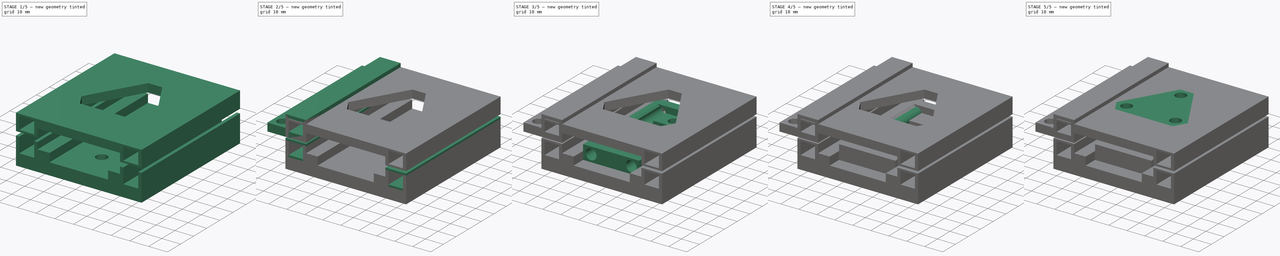
[diagram: build sequence overview — one tinted view per stage of 5, left to right]
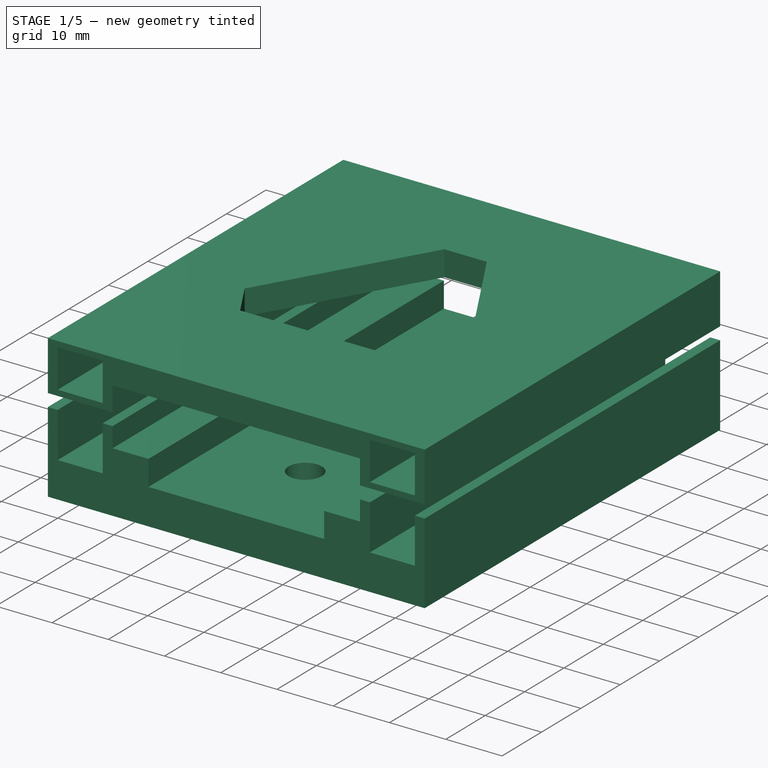
[diagram: stage 1 of 5 — iso view after this stage's code; geometry added in this stage tinted green]
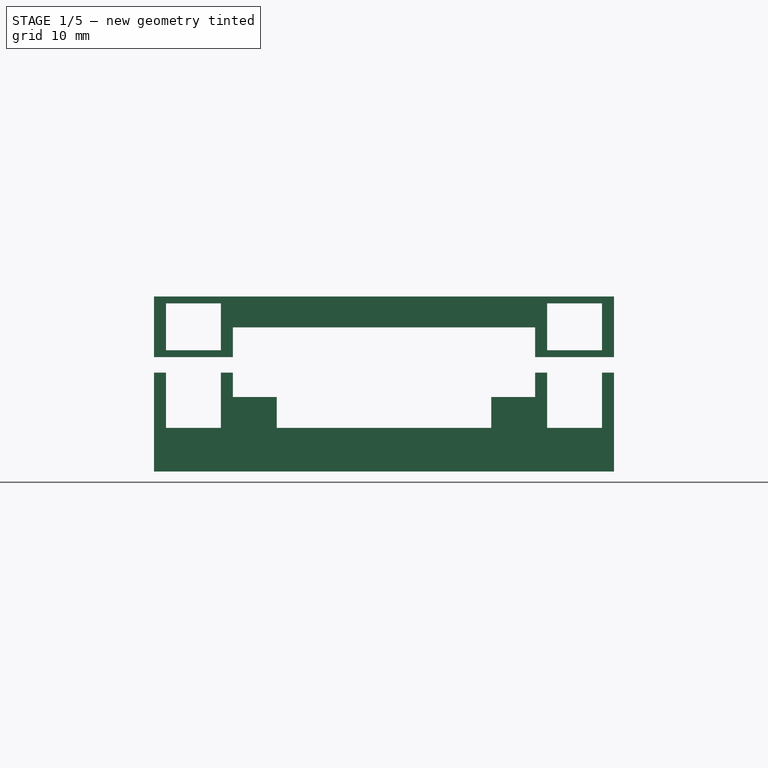
[diagram: stage 1 of 5 — front view after this stage's code; geometry added in this stage tinted green]
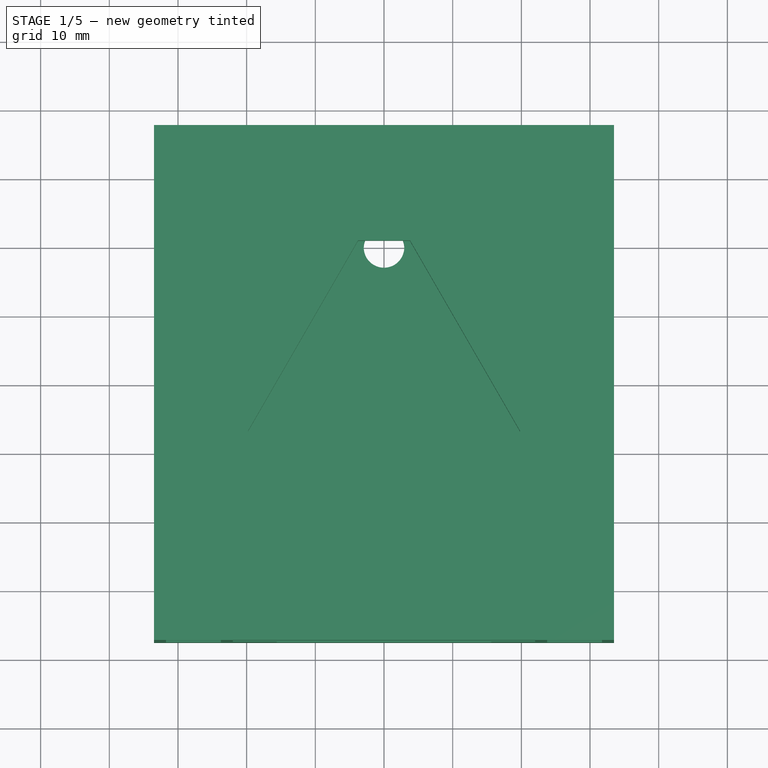
[diagram: stage 1 of 5 — top view after this stage's code; geometry added in this stage tinted green]
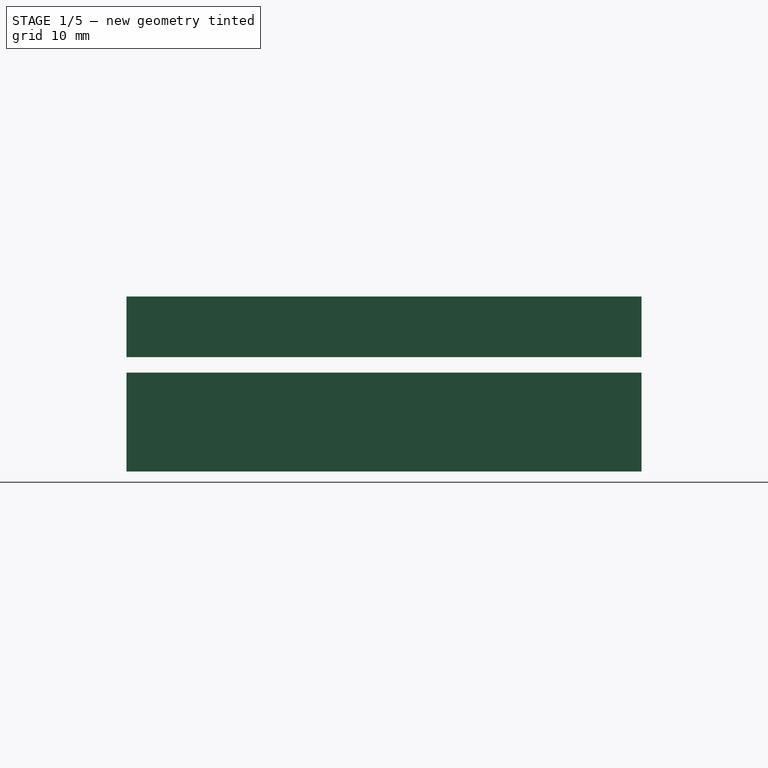
[diagram: stage 1 of 5 — right view after this stage's code; geometry added in this stage tinted green]
FCSTD DOCUMENT  (FreeCAD 2022.1128R26244 +5318 (Git))
Label: kinematicBase-large-25.42mm
License: All rights reserved
LicenseURL: http://en.wikipedia.org/wiki/All_rights_reserved
objects: PartDesign::Pad×35, App::FeaturePython×34, Sketcher::SketchObject×31, Part::FeaturePython×22, PartDesign::Body×9, PartDesign::Revolution×3, Part::SubShapeBinder×2, Part::Feature×1, Spreadsheet::Sheet×1, App::Link×1
note: 205 computed .brp shape members not serialized (recipe doc carries the construction recipe); baked Part::Feature solids carry a one-line shape summary decoded from their .brp
EXTERNAL_REF file=_ref/K_J_Magnetics/BYC33.FCStd obj=Body

FEATURE [PartDesign::Body] Body005  label="kinematicBase-large-augmentationMagnetBracket-standalone"
  AutoGroupSolids = false
  ClaimAllChildren = false
  ExportMode = 0
  Group = -> [Sketch024,Pad022,Pad024,Sketch025,Pad023,Pad025]
  Origin = -> Origin005
  Tip = -> Pad025
  TreeRank = 124
  _ExportChildren = -> [Pad022,Pad024,Pad023,Pad025]
  _GroupVersion = 1
FEATURE [Part::FeaturePython] Parts004  # WARN: FeaturePython — macro-defined, semantics opaque (R4)
  Group = -> [Body005,Link]
  GroupMode = 0
  TreeRank = 114
  _LinkVersion = 1
FEATURE [Sketcher::SketchObject] Sketch027
  ArcFitTolerance = 1e-06
  AttachmentOffset = pos=(0,0,-9.675) rot=(0,0,1;0rad)
  AttachmentSupport = -> [XY_Plane006]
  ExternalBSplineMaxDegree = 5
  ExternalBSplineTolerance = 0.0001
  ExternalGeometry = -> [Sketch005]
  FullyConstrained = true
  InternalTolerance = 1e-06
  MakeInternals = false
  MapMode = 5
  Placement = pos=(0,0,-9.675) rot=(0,0,1;0rad)
  Support = -> [XY_Plane006]
  TreeRank = 145
  expr: AttachmentOffset.Base.z = -1 * Spreadsheet.ballDiameter * 0.5 - Spreadsheet.socketFloorClearance
  expr: Constraints[24] = Spreadsheet.augmentationLength
  expr: Constraints[25] = Spreadsheet.augmentationWall
  expr: Constraints[26] = Spreadsheet.augmentationWidth
  expr: Constraints[2] = Spreadsheet.augmentationOffset
  sketch-geometry (28):
    g0: LineSegment [constr] StartX=0 StartY=0 StartZ=0 EndX=-22 EndY=0 EndZ=0
    g1: LineSegment StartX=-22 StartY=37.5 StartZ=0 EndX=-23.75 EndY=37.5 EndZ=0
    g2: LineSegment StartX=-23.75 StartY=37.5 StartZ=0 EndX=-23.75 EndY=-37.5 EndZ=0
    g3: LineSegment StartX=-23.75 StartY=-37.5 StartZ=0 EndX=-22 EndY=-37.5 EndZ=0
    g4: LineSegment StartX=-22 StartY=-37.5 StartZ=0 EndX=-22 EndY=37.5 EndZ=0
    g5: LineSegment StartX=-23.75 StartY=37.5 StartZ=0 EndX=-31.75 EndY=37.5 EndZ=0
    g6: LineSegment StartX=-31.75 StartY=37.5 StartZ=0 EndX=-31.75 EndY=-37.5 EndZ=0
    g7: LineSegment StartX=-31.75 StartY=-37.5 StartZ=0 EndX=-23.75 EndY=-37.5 EndZ=0
    g8: LineSegment StartX=-31.75 StartY=37.5 StartZ=0 EndX=-33.5 EndY=37.5 EndZ=0
    g9: LineSegment StartX=-33.5 StartY=37.5 StartZ=0 EndX=-33.5 EndY=-37.5 EndZ=0
    g10: LineSegment StartX=-33.5 StartY=-37.5 StartZ=0 EndX=-31.75 EndY=-37.5 EndZ=0
    g11: LineSegment StartX=-22 StartY=37.5 StartZ=0 EndX=-15.611 EndY=37.5 EndZ=0
    g12: LineSegment StartX=-15.611 StartY=37.5 StartZ=0 EndX=-15.611 EndY=-37.5 EndZ=0
    g13: LineSegment StartX=-15.611 StartY=-37.5 StartZ=0 EndX=-22 EndY=-37.5 EndZ=0
    g14: LineSegment [constr] StartX=0 StartY=0 StartZ=0 EndX=22 EndY=0 EndZ=0
    g15: LineSegment StartX=22 StartY=37.5 StartZ=0 EndX=23.75 EndY=37.5 EndZ=0
    g16: LineSegment StartX=23.75 StartY=37.5 StartZ=0 EndX=23.75 EndY=-37.5 EndZ=0
    g17: LineSegment StartX=23.75 StartY=-37.5 StartZ=0 EndX=22 EndY=-37.5 EndZ=0
    g18: LineSegment StartX=22 StartY=-37.5 StartZ=0 EndX=22 EndY=37.5 EndZ=0
    g19: LineSegment StartX=22 StartY=37.5 StartZ=0 EndX=15.611 EndY=37.5 EndZ=0
    g20: LineSegment StartX=15.611 StartY=37.5 StartZ=0 EndX=15.611 EndY=-37.5 EndZ=0
    g21: LineSegment StartX=15.611 StartY=-37.5 StartZ=0 EndX=22 EndY=-37.5 EndZ=0
    g22: LineSegment StartX=23.75 StartY=37.5 StartZ=0 EndX=31.75 EndY=37.5 EndZ=0
    g23: LineSegment StartX=31.75 StartY=37.5 StartZ=0 EndX=31.75 EndY=-37.5 EndZ=0
    g24: LineSegment StartX=31.75 StartY=-37.5 StartZ=0 EndX=23.75 EndY=-37.5 EndZ=0
    g25: LineSegment StartX=31.75 StartY=-37.5 StartZ=0 EndX=33.5 EndY=-37.5 EndZ=0
    g26: LineSegment StartX=33.5 StartY=-37.5 StartZ=0 EndX=33.5 EndY=37.5 EndZ=0
    g27: LineSegment StartX=33.5 StartY=37.5 StartZ=0 EndX=31.75 EndY=37.5 EndZ=0
  constraints (76):
    c: Coincident(g0,g-1)
    c: Horizontal(g0)
    c: DistanceX(g0,g0) = 22
    c: Coincident(g1,g2)
    c: Coincident(g2,g3)
    c: Coincident(g3,g4)
    c: Coincident(g4,g1)
    c: Horizontal(g1)
    c: Horizontal(g3)
    c: Vertical(g2)
    c: Vertical(g4)
    c: Coincident(g5,g1)
    c: Horizontal(g5)
    c: Coincident(g6,g5)
    c: Vertical(g6)
    c: Coincident(g7,g6)
    c: Coincident(g7,g2)
    c: Horizontal(g8)
    c: Coincident(g9,g8)
    c: Vertical(g9)
    c: Coincident(g10,g9)
    c: Horizontal(g10)
    c: Horizontal(g7)
    c: Symmetric(g4,g4,g0)
    c: DistanceY(g4,g4) = 75
    c: DistanceX(g3,g3) = 1.75
    c: DistanceX(g7,g7) = 8
    c: Coincident(g8,g5)
    c: Coincident(g6,g10)
    c: Equal(g10,g3)
    c: Coincident(g11,g1)
    c: Horizontal(g11)
    c: Coincident(g12,g11)
    c: Vertical(g12)
    c: Coincident(g13,g12)
    c: Coincident(g13,g3)
    c: Horizontal(g13)
    c: PointOnObject(g-3,g12)
    c: Coincident(g14,g0)
    c: Horizontal(g14)
    c: Coincident(g15,g16)
    c: Coincident(g16,g17)
    c: Coincident(g17,g18)
    c: Coincident(g18,g15)
    c: Horizontal(g15)
    c: Horizontal(g17)
    c: Vertical(g16)
    c: Vertical(g18)
    c: Equal(g17,g3)
    c: Symmetric(g18,g18,g14)
    c: Coincident(g19,g15)
    c: Horizontal(g19)
    c: Coincident(g20,g19)
    c: Vertical(g20)
    c: Coincident(g21,g20)
    c: Coincident(g21,g17)
    c: Horizontal(g21)
    c: PointOnObject(g-4,g20)
    c: Coincident(g22,g15)
    c: Horizontal(g22)
    c: Coincident(g23,g22)
    c: Vertical(g23)
    c: Coincident(g24,g23)
    c: Coincident(g24,g16)
    c: Horizontal(g24)
    c: Coincident(g25,g23)
    c: Horizontal(g25)
    c: Coincident(g26,g25)
    c: Vertical(g26)
    c: Coincident(g27,g26)
    c: Coincident(g27,g22)
    c: Horizontal(g27)
    c: Equal(g25,g17)
    c: Equal(g13,g21)
    c: Equal(g7,g24)
    c: Equal(g20,g12)
FEATURE [PartDesign::Pad] Pad026
  AddSubType = 0
  AlongSketchNormal = false
  AutoTaperInnerAngle = true
  CheckUpToFaceLimits = true
  ClaimChildren = false
  Direction = (0,0,1)
  Fit = 0
  FitJoin = 0
  InnerFit = 0
  InnerFitJoin = 0
  Length = 4.5
  Length2 = 100
  Linearize = true
  NewSolid = false
  Profile = -> Sketch027 [Edge7,Edge8,Edge6,Edge19,Edge21,Edge20,Edge18,Edge5]
  Refine = true
  Suppress = false
  TaperInnerAngle = 0
  TaperInnerAngleRev = 0
  TreeRank = 146
  Type = 0
  _ProfileBasedVersion = 1
  expr: Length = Spreadsheet.socketAugmentationFloor
FEATURE [PartDesign::Pad] Pad027
  AddSubType = 0
  AlongSketchNormal = false
  AutoTaperInnerAngle = true
  BaseFeature = -> Pad026
  CheckUpToFaceLimits = true
  ClaimChildren = false
  Direction = (0,0,1)
  Fit = 0
  FitJoin = 0
  InnerFit = 0
  InnerFitJoin = 0
  Length = 8.05
  Length2 = 100
  Linearize = true
  NewSolid = false
  Profile = -> Sketch027 [Edge4,Edge5,Edge2,Edge3,Edge13,Edge10,Edge11,Edge12,Edge17,Edge16,Edge15,Edge18,Edge23,Edge24,Edge25,Edge26]
  Refine = true
  Suppress = false
  TaperInnerAngle = 0
  TaperInnerAngleRev = 0
  TreeRank = 147
  Type = 0
  _ProfileBasedVersion = 1
  expr: Length = Spreadsheet.socketAugmentationHeight
FEATURE [PartDesign::Body] Body006  label="kinematicBase-large-bottom-ADDITIVE-augmentationMagnetBracket"
  AutoGroupSolids = false
  ClaimAllChildren = false
  ExportMode = 0
  Group = -> [Sketch027,Pad026,Pad027,Pad028,Sketch028,Pad029]
  Origin = -> Origin006
  Tip = -> Pad029
  TreeRank = 144
  _ExportChildren = -> [Pad026,Pad027,Pad028,Pad029]
  _GroupVersion = 1
FEATURE [Sketcher::SketchObject] Sketch030
  ArcFitTolerance = 1e-06
  AttachmentSupport = -> [XY_Plane007]
  ExternalBSplineMaxDegree = 5
  ExternalBSplineTolerance = 0.0001
  FullyConstrained = true
  InternalTolerance = 1e-06
  MakeInternals = false
  MapMode = 5
  Support = -> [XY_Plane007]
  TreeRank = 82
  expr: Constraints[1] = Spreadsheet.socketLength * 0.5 - Spreadsheet.socketCap
  expr: Constraints[4] = Spreadsheet.screwHead
  expr: Constraints[6] = Spreadsheet.screwHole
  sketch-geometry (6):
    g0: LineSegment [constr] StartX=0 StartY=25 StartZ=0 EndX=0 EndY=0 EndZ=0
    g1: Circle [constr] CenterX=0 CenterY=20 CenterZ=0 NormalX=0 NormalY=0 NormalZ=1 AngleXU=0 Radius=5
    g2: Circle CenterX=0 CenterY=20 CenterZ=0 NormalX=0 NormalY=0 NormalZ=1 AngleXU=0 Radius=2.95
    g3: Circle [constr] CenterX=0 CenterY=-20 CenterZ=0 NormalX=0 NormalY=0 NormalZ=1 AngleXU=0 Radius=5
    g4: Circle CenterX=0 CenterY=-20 CenterZ=0 NormalX=0 NormalY=0 NormalZ=1 AngleXU=0 Radius=2.95
    g5: LineSegment [constr] StartX=0 StartY=-25 StartZ=0 EndX=0 EndY=0 EndZ=0
  constraints (16):
    c: Vertical(g0)
    c: DistanceY(g0,g0) = 25
    c: PointOnObject(g1,g0)
    c: PointOnObject(g0,g1)
    c: Diameter(g1) = 10
    c: Coincident(g2,g1)
    c: Diameter(g2) = 5.9
    c: Coincident(g0,g-1)
    c: Equal(g3,g1)
    c: Equal(g2,g4)
    c: Vertical(g5)
    c: PointOnObject(g4,g5)
    c: Coincident(g3,g4)
    c: PointOnObject(g5,g3)
    c: Equal(g5,g0)
    c: Coincident(g5,g0)
FEATURE [Part::SubShapeBinder] Import  label="Import(Sketch027)"
  BindCopyOnChange = 0
  BindMode = 0
  ClaimChildren = false
  Context = -> Assembly [Parts.Assembly003.Parts003.Assembly002.Parts002.Body007.Import.]
  EdgeTolerance = 1e-06
  FillStyle = 0
  Fuse = false
  MakeFace = false
  MergeEdges = true
  OffsetFill = false
  OffsetIntersection = false
  OffsetJoinType = 0
  OffsetOpenResult = false
  Outline = false
  PartialLoad = false
  Relative = true
  SplitEdges = false
  Support = -> [Body006[Sketch027.]]
  TightBound = false
  TreeRank = 153
  _Version = 8
FEATURE [Sketcher::SketchObject] Sketch029
  ArcFitTolerance = 1e-06
  AttachmentSupport = -> [XZ_Plane007]
  ExternalBSplineMaxDegree = 5
  ExternalBSplineTolerance = 0.0001
  ExternalGeometry = -> [Import]
  FullyConstrained = true
  InternalTolerance = 1e-06
  MakeInternals = false
  MapMode = 5
  Placement = pos=(0,0,0) rot=(1,0,0;1.5708rad)
  Support = -> [XZ_Plane007]
  TreeRank = 80
  expr: Constraints[14] = Spreadsheet.socketFloorClearance
  expr: Constraints[16] = Spreadsheet.socketDiameter
  expr: Constraints[9] = Spreadsheet.ballDiameter
  sketch-geometry (7):
    g0: LineSegment StartX=-33.5 StartY=-9.675 StartZ=0 EndX=33.5 EndY=-9.675 EndZ=0
    g1: LineSegment StartX=33.5 StartY=-9.675 StartZ=0 EndX=33.5 EndY=-16.025 EndZ=0
    g2: LineSegment StartX=33.5 StartY=-16.025 StartZ=0 EndX=-33.5 EndY=-16.025 EndZ=0
    g3: LineSegment StartX=-33.5 StartY=-16.025 StartZ=0 EndX=-33.5 EndY=-9.675 EndZ=0
    g4: Circle [constr] CenterX=0 CenterY=0 CenterZ=0 NormalX=0 NormalY=0 NormalZ=1 AngleXU=0 Radius=9.525
    g5: LineSegment [constr] StartX=0 StartY=0 StartZ=0 EndX=0 EndY=-9.525 EndZ=0
    g6: LineSegment [constr] StartX=0 StartY=-9.525 StartZ=0 EndX=0 EndY=-9.675 EndZ=0
  constraints (19):
    c: Coincident(g0,g1)
    c: Coincident(g1,g2)
    c: Coincident(g2,g3)
    c: Coincident(g3,g0)
    c: Horizontal(g0)
    c: Horizontal(g2)
    c: Vertical(g1)
    c: Vertical(g3)
    c: Coincident(g4,g-1)
    c: Diameter(g4) = 19.05
    c: Coincident(g5,g4)
    c: PointOnObject(g5,g4)
    c: Coincident(g6,g5)
    c: Parallel(g6,g5)
    c: DistanceY(g6,g6) = 0.15
    c: Vertical(g5)
    c: DistanceY(g1,g1) = 6.35
    c: Symmetric(g0,g0,g6)
    c: PointOnObject(g-3,g3)
FEATURE [PartDesign::Pad] Pad030
  AddSubType = 0
  AlongSketchNormal = false
  AutoTaperInnerAngle = true
  CheckUpToFaceLimits = true
  ClaimChildren = false
  Direction = (0,-1,-2e-16)
  Fit = 0
  FitJoin = 0
  InnerFit = 0
  InnerFitJoin = 0
  Length = 75
  Length2 = 100
  Linearize = true
  Midplane = true
  NewSolid = false
  Profile = -> Sketch029
  Refine = true
  Suppress = false
  TaperInnerAngle = 0
  TaperInnerAngleRev = 0
  TreeRank = 81
  Type = 0
  _ProfileBasedVersion = 1
  expr: Length = Spreadsheet.augmentationLength
FEATURE [PartDesign::Pad] Pad031
  AddSubType = 1
  AlongSketchNormal = false
  AutoTaperInnerAngle = true
  BaseFeature = -> Pad030
  CheckUpToFaceLimits = true
  ClaimChildren = false
  Direction = (0,0,1)
  Fit = 0
  FitJoin = 0
  InnerFit = 0
  InnerFitJoin = 0
  Length = 80
  Length2 = 100
  Linearize = true
  NewSolid = false
  Profile = -> Sketch030
  Refine = true
  Reversed = true
  Suppress = false
  TaperInnerAngle = 0
  TaperInnerAngleRev = 0
  TreeRank = 83
  Type = 0
  _ProfileBasedVersion = 1
FEATURE [PartDesign::Body] Body007  label="kinematicBase-large-bottom-ADDITIVE-shim"
  AutoGroupSolids = false
  ClaimAllChildren = false
  ExportMode = 0
  Group = -> [Sketch029,Pad030,Sketch030,Pad031,Import]
  Origin = -> Origin007
  Tip = -> Pad031
  TreeRank = 151
  _ExportChildren = -> [Pad030,Pad031,Import]
  _GroupVersion = 1
FEATURE [Part::FeaturePython] Parts002  # WARN: FeaturePython — macro-defined, semantics opaque (R4)
  Group = -> [Body002,Body003,Body004,Body006,Body007]
  GroupMode = 0
  TreeRank = 69
  _LinkVersion = 1
FEATURE [Part::SubShapeBinder] Import001  label="Import001(Pad003)"
  BindCopyOnChange = 0
  BindMode = 0
  ClaimChildren = false
  Context = -> Assembly [Parts.Assembly003.Parts003.Assembly001.Parts001.Body008.Import001.]
  EdgeTolerance = 1e-06
  FillStyle = 0
  Fuse = false
  MakeFace = false
  MergeEdges = true
  OffsetFill = false
  OffsetIntersection = false
  OffsetJoinType = 0
  OffsetOpenResult = false
  Outline = false
  PartialLoad = false
  Relative = true
  SplitEdges = false
  Support = -> [Body[Pad003.]]
  TightBound = false
  TreeRank = 165
  _Version = 8
FEATURE [Sketcher::SketchObject] Sketch031
  ArcFitTolerance = 1e-06
  AttachmentOffset = pos=(0,0,9.45) rot=(0,0,1;0rad)
  AttachmentSupport = -> [XY_Plane008]
  ExternalBSplineMaxDegree = 5
  ExternalBSplineTolerance = 0.0001
  ExternalGeometry = -> [Import001]
  FullyConstrained = true
  InternalTolerance = 1e-06
  MakeInternals = false
  MapMode = 5
  Placement = pos=(0,0,9.45) rot=(0,0,1;0rad)
  Support = -> [XY_Plane008]
  TreeRank = 164
  expr: AttachmentOffset.Base.z = Spreadsheet.ballDiameter * 0.5 - Spreadsheet.retainerFloorClearance
  expr: Constraints[25] = Spreadsheet.augmentationWall
  expr: Constraints[26] = Spreadsheet.augmentationOffset
  expr: Constraints[27] = Spreadsheet.augmentationWidth
  expr: Constraints[29] = Spreadsheet.augmentationLength
  sketch-geometry (24):
    g0: LineSegment [constr] StartX=0 StartY=0 StartZ=0 EndX=-22 EndY=0 EndZ=0
    g1: LineSegment StartX=-22 StartY=37.5 StartZ=0 EndX=-23.75 EndY=37.5 EndZ=0
    g2: LineSegment StartX=-23.75 StartY=37.5 StartZ=0 EndX=-23.75 EndY=-37.5 EndZ=0
    g3: LineSegment StartX=-23.75 StartY=-37.5 StartZ=0 EndX=-22 EndY=-37.5 EndZ=0
    g4: LineSegment StartX=-22 StartY=-37.5 StartZ=0 EndX=-22 EndY=37.5 EndZ=0
    g5: LineSegment StartX=-23.75 StartY=-37.5 StartZ=0 EndX=-31.75 EndY=-37.5 EndZ=0
    g6: LineSegment StartX=-31.75 StartY=-37.5 StartZ=0 EndX=-31.75 EndY=37.5 EndZ=0
    g7: LineSegment StartX=-31.75 StartY=37.5 StartZ=0 EndX=-23.75 EndY=37.5 EndZ=0
    g8: LineSegment StartX=-31.75 StartY=37.5 StartZ=0 EndX=-33.5 EndY=37.5 EndZ=0
    g9: LineSegment StartX=-33.5 StartY=37.5 StartZ=0 EndX=-33.5 EndY=-37.5 EndZ=0
    g10: LineSegment StartX=-33.5 StartY=-37.5 StartZ=0 EndX=-31.75 EndY=-37.5 EndZ=0
    g11: LineSegment StartX=22 StartY=37.5 StartZ=0 EndX=23.75 EndY=37.5 EndZ=0
    g12: LineSegment StartX=23.75 StartY=37.5 StartZ=0 EndX=23.75 EndY=-37.5 EndZ=0
    g13: LineSegment StartX=23.75 StartY=-37.5 StartZ=0 EndX=22 EndY=-37.5 EndZ=0
    g14: LineSegment StartX=22 StartY=-37.5 StartZ=0 EndX=22 EndY=37.5 EndZ=0
    g15: LineSegment StartX=23.75 StartY=37.5 StartZ=0 EndX=31.75 EndY=37.5 EndZ=0
    g16: LineSegment StartX=31.75 StartY=37.5 StartZ=0 EndX=31.75 EndY=-37.5 EndZ=0
    g17: LineSegment StartX=31.75 StartY=-37.5 StartZ=0 EndX=23.75 EndY=-37.5 EndZ=0
    g18: LineSegment StartX=31.75 StartY=37.5 StartZ=0 EndX=33.5 EndY=37.5 EndZ=0
    g19: LineSegment StartX=33.5 StartY=37.5 StartZ=0 EndX=33.5 EndY=-37.5 EndZ=0
    g20: LineSegment StartX=33.5 StartY=-37.5 StartZ=0 EndX=31.75 EndY=-37.5 EndZ=0
    g21: LineSegment [constr] StartX=0 StartY=0 StartZ=0 EndX=22 EndY=0 EndZ=0
    g22: LineSegment StartX=-22 StartY=37.5 StartZ=0 EndX=22 EndY=37.5 EndZ=0
    g23: LineSegment StartX=22 StartY=-37.5 StartZ=0 EndX=-22 EndY=-37.5 EndZ=0
  constraints (64):
    c: Coincident(g0,g-1)
    c: Horizontal(g0)
    c: Coincident(g1,g2)
    c: Coincident(g2,g3)
    c: Coincident(g3,g4)
    c: Coincident(g4,g1)
    c: Horizontal(g1)
    c: Horizontal(g3)
    c: Vertical(g2)
    c: Vertical(g4)
    c: Symmetric(g4,g4,g0)
    c: Coincident(g5,g2)
    c: Horizontal(g5)
    c: Coincident(g6,g5)
    c: Vertical(g6)
    c: Coincident(g7,g6)
    c: Coincident(g7,g1)
    c: Horizontal(g7)
    c: Coincident(g8,g6)
    c: Horizontal(g8)
    c: Coincident(g9,g8)
    c: Vertical(g9)
    c: Coincident(g10,g9)
    c: Coincident(g10,g5)
    c: Horizontal(g10)
    c: DistanceX(g3,g3) = 1.75
    c: DistanceX(g0,g0) = 22
    c: DistanceX(g5,g5) = 8
    c: Equal(g10,g3)
    c: DistanceY(g4,g4) = 75
    c: Coincident(g11,g12)
    c: Coincident(g12,g13)
    c: Coincident(g13,g14)
    c: Coincident(g14,g11)
    c: Horizontal(g11)
    c: Horizontal(g13)
    c: Vertical(g12)
    c: Vertical(g14)
    c: Coincident(g15,g11)
    c: Horizontal(g15)
    c: Coincident(g16,g15)
    c: Vertical(g16)
    c: Coincident(g17,g16)
    c: Coincident(g17,g12)
    c: Horizontal(g17)
    c: Coincident(g18,g15)
    c: Horizontal(g18)
    c: Coincident(g19,g18)
    c: Vertical(g19)
    c: Coincident(g20,g19)
    c: Coincident(g20,g16)
    c: Horizontal(g20)
    c: Coincident(g21,g0)
    c: Symmetric(g14,g14,g21)
    c: Horizontal(g21)
    c: Equal(g14,g4)
    c: Equal(g3,g13)
    c: Equal(g13,g20)
    c: Equal(g17,g5)
    c: Equal(g21,g0)
    c: Coincident(g22,g1)
    c: Coincident(g22,g11)
    c: Coincident(g23,g13)
    c: Coincident(g23,g3)
FEATURE [PartDesign::Pad] Pad032
  AddSubType = 0
  AlongSketchNormal = false
  AutoTaperInnerAngle = true
  CheckUpToFaceLimits = true
  ClaimChildren = false
  Direction = (0,0,1)
  Fit = 0
  FitJoin = 0
  InnerFit = 0
  InnerFitJoin = 0
  Length = 4.5
  Length2 = 100
  Linearize = true
  NewSolid = false
  Profile = -> Sketch031 [Edge23,Edge28,Edge27,Edge26,Edge25,Edge24,Edge17,Edge18,Edge22,Edge4]
  Refine = true
  Reversed = true
  Suppress = false
  TaperInnerAngle = 0
  TaperInnerAngleRev = 0
  TreeRank = 166
  Type = 0
  _ProfileBasedVersion = 1
  expr: Length = Spreadsheet.retainerAugmentationFloor
FEATURE [PartDesign::Pad] Pad033
  AddSubType = 0
  AlongSketchNormal = false
  AutoTaperInnerAngle = true
  BaseFeature = -> Pad032
  CheckUpToFaceLimits = true
  ClaimChildren = false
  Direction = (0,0,1)
  Fit = 0
  FitJoin = 0
  InnerFit = 0
  InnerFitJoin = 0
  Length = 7.825
  Length2 = 100
  Linearize = true
  NewSolid = false
  Profile = -> Sketch031 [Edge16,Edge17,Edge14,Edge15,Edge11,Edge12,Edge7,Edge6,Edge21,Edge20,Edge19,Edge22,Edge10,Edge9,Edge8,Edge2]
  Refine = true
  Reversed = true
  Suppress = false
  TaperInnerAngle = 0
  TaperInnerAngleRev = 0
  TreeRank = 167
  Type = 0
  _ProfileBasedVersion = 1
  expr: Length = Spreadsheet.retainerAugmentationHeight
FEATURE [PartDesign::Pad] Pad034
  AddSubType = 0
  AlongSketchNormal = false
  AutoTaperInnerAngle = true
  BaseFeature = -> Pad033
  CheckUpToFaceLimits = true
  ClaimChildren = false
  Direction = (0,0,1)
  Fit = 0
  FitJoin = 0
  InnerFit = 0
  InnerFitJoin = 0
  Length = 1
  Length2 = 100
  Linearize = true
  NewSolid = false
  Profile = -> Sketch031 [Edge5,Edge15,Edge13,Edge12,Edge3,Edge2,Edge1,Edge20]
  Refine = true
  Reversed = true
  Suppress = false
  TaperInnerAngle = 0
  TaperInnerAngleRev = 0
  TreeRank = 168
  Type = 0
  _ProfileBasedVersion = 1
  expr: Length = Spreadsheet.retainerAugmentationFill
FEATURE [Sketcher::SketchObject] Sketch032
  ArcFitTolerance = 1e-06
  AttachmentSupport = -> [Pad034]
  ExternalBSplineMaxDegree = 5
  ExternalBSplineTolerance = 0.0001
  ExternalGeometry = -> [Pad034]
  FullyConstrained = true
  InternalTolerance = 1e-06
  MakeInternals = false
  MapMode = 5
  Placement = pos=(0,0,1.625) rot=(1,0,0;3.14159rad)
  Support = -> [Pad034]
  TreeRank = 169
  sketch-geometry (4):
    g0: LineSegment StartX=-33.5 StartY=37.5 StartZ=0 EndX=-22 EndY=37.5 EndZ=0
    g1: LineSegment StartX=-33.5 StartY=-37.5 StartZ=0 EndX=-22 EndY=-37.5 EndZ=0
    g2: LineSegment StartX=22 StartY=37.5 StartZ=0 EndX=33.5 EndY=37.5 EndZ=0
    g3: LineSegment StartX=22 StartY=-37.5 StartZ=0 EndX=33.5 EndY=-37.5 EndZ=0
  constraints (8):
    c: Coincident(g0,g-4)
    c: Coincident(g0,g-6)
    c: Coincident(g1,g-4)
    c: Coincident(g1,g-6)
    c: Coincident(g2,g-8)
    c: Coincident(g2,g-10)
    c: Coincident(g3,g-8)
    c: Coincident(g3,g-10)
FEATURE [PartDesign::Pad] Pad035
  AddSubType = 0
  AlongSketchNormal = false
  AutoTaperInnerAngle = true
  BaseFeature = -> Pad034
  CheckUpToFaceLimits = true
  ClaimChildren = false
  Direction = (0,0,-1)
  Fit = 0
  FitJoin = 0
  InnerFit = 0
  InnerFitJoin = 0
  Length = 1
  Length2 = 100
  Linearize = true
  NewSolid = false
  Profile = -> Sketch032 [Edge2,Edge1,Edge4,Edge3,Edge10,Edge7,Edge8,Edge11]
  Refine = true
  Suppress = false
  TaperInnerAngle = 0
  TaperInnerAngleRev = 0
  TreeRank = 170
  Type = 0
  _ProfileBasedVersion = 1
  expr: Length = Spreadsheet.retainerAugmentationBarrier
FEATURE [PartDesign::Body] Body008  label="kinematicBase-large-top-ADDITIVE-augmentationMagnetBracket"
  AutoGroupSolids = false
  ClaimAllChildren = false
  ExportMode = 0
  Group = -> [Sketch031,Import001,Pad032,Pad033,Pad034,Sketch032,Pad035]
  Origin = -> Origin008
  Tip = -> Pad035
  TreeRank = 163
  _ExportChildren = -> [Import001,Pad032,Pad033,Pad034,Pad035]
  _GroupVersion = 1
FEATURE [Part::FeaturePython] Parts001  # WARN: FeaturePython — macro-defined, semantics opaque (R4)
  Group = -> [Body001,Body,Body008]
  GroupMode = 0
  TreeRank = 30
  _LinkVersion = 1
FEATURE [Part::FeaturePython] Assembly  label="kinematicBase-large-lab-Assembly"  # WARN: FeaturePython — macro-defined, semantics opaque (R4)
  AutoRelax = true
  BuildShape = 0
  Freeze = false
  Group = -> [Constraints,Elements,Parts]
  TreeRank = 0
  Verbose = false
  _LinkVersion = 1
  _SolverType = 1
  _Version = 1
FEATURE [App::FeaturePython] Constraints  # WARN: FeaturePython — macro-defined, semantics opaque (R4)
  Group = -> [Constraint]
  TreeRank = 0
  _LinkVersion = 1
  _Version = 1
FEATURE [App::FeaturePython] Elements  # WARN: FeaturePython — macro-defined, semantics opaque (R4)
  Group = -> [_Element]
  TreeRank = 0
  _LinkVersion = 1
FEATURE [Part::FeaturePython] Parts  # WARN: FeaturePython — macro-defined, semantics opaque (R4)
  Group = -> [Compound,Assembly003]
  GroupMode = 0
  TreeRank = 0
  _LinkVersion = 1
FEATURE [Part::FeaturePython] _Element  # link proxy (typed FeaturePython)
  Detach = false
  LinkTransform = true
  LinkedObject = -> Compound [Face64]
  TreeRank = 4
  _LinkVersion = 1
  _Parent = -> Elements
FEATURE [App::FeaturePython] Constraint  label="Locked"  # WARN: FeaturePython — macro-defined, semantics opaque (R4)
  Disabled = false
  Group = -> [ElementLink]
  TreeRank = 5
  _ConstraintType = 0
  _LinkVersion = 1
  _Parent = -> Constraints
FEATURE [App::FeaturePython] ElementLink  label="_Element"  # link proxy (typed FeaturePython)
  LinkTransform = true
  LinkedObject = -> _Element
  TreeRank = 6
  _LinkVersion = 1
  _Parent = -> Constraint
FEATURE [Part::FeaturePython] Assembly001  label="kinematicBase-large-top-ball-Assembly"  # WARN: FeaturePython — macro-defined, semantics opaque (R4)
  AutoRelax = true
  BuildShape = 0
  Freeze = false
  Group = -> [Constraints001,Elements001,Parts001]
  TreeRank = 27
  Verbose = false
  _LinkVersion = 1
  _SolverType = 1
  _Version = 1
FEATURE [App::FeaturePython] Constraints001  # WARN: FeaturePython — macro-defined, semantics opaque (R4)
  Group = -> [Constraint001,Constraint002,Constraint011]
  TreeRank = 28
  _LinkVersion = 1
  _Version = 1
FEATURE [App::FeaturePython] Elements001  # WARN: FeaturePython — macro-defined, semantics opaque (R4)
  Group = -> [_Element001,_Element002,_Element011]
  TreeRank = 29
  _LinkVersion = 1
FEATURE [Part::FeaturePython] Assembly002  label="kinematicBase-large-bottom-rods-Assembly"  # WARN: FeaturePython — macro-defined, semantics opaque (R4)
  AutoRelax = true
  BuildShape = 0
  Freeze = false
  Group = -> [Constraints002,Elements002,Parts002]
  TreeRank = 66
  Verbose = false
  _LinkVersion = 1
  _SolverType = 1
  _Version = 1
FEATURE [App::FeaturePython] Constraints002  # WARN: FeaturePython — macro-defined, semantics opaque (R4)
  Group = -> [Constraint003,Constraint004,Constraint005,Constraint009,Constraint010]
  TreeRank = 67
  _LinkVersion = 1
  _Version = 1
FEATURE [App::FeaturePython] Elements002  # WARN: FeaturePython — macro-defined, semantics opaque (R4)
  Group = -> [_Element003,_Element004,_Element005,_Element009,_Element010]
  TreeRank = 68
  _LinkVersion = 1
FEATURE [Part::FeaturePython] Assembly003  label="kinematicBase-large-Assembly"  # WARN: FeaturePython — macro-defined, semantics opaque (R4)
  AutoRelax = true
  BuildShape = 0
  Freeze = false
  Group = -> [Constraints003,Elements003,Parts003]
  TreeRank = 86
  Verbose = false
  _LinkVersion = 1
  _SolverType = 1
  _Version = 1
FEATURE [App::FeaturePython] Constraints003  # WARN: FeaturePython — macro-defined, semantics opaque (R4)
  Group = -> [Constraint006,Constraint007]
  TreeRank = 87
  _LinkVersion = 1
  _Version = 1
FEATURE [App::FeaturePython] Elements003  # WARN: FeaturePython — macro-defined, semantics opaque (R4)
  Group = -> [_Element006,_Element007]
  TreeRank = 88
  _LinkVersion = 1
FEATURE [Part::FeaturePython] Parts003  # WARN: FeaturePython — macro-defined, semantics opaque (R4)
  Group = -> [Assembly001,Assembly002,Assembly004]
  GroupMode = 0
  TreeRank = 89
  _LinkVersion = 1
FEATURE [App::FeaturePython] Constraint001  label="Locked001"  # WARN: FeaturePython — macro-defined, semantics opaque (R4)
  Disabled = false
  Group = -> [ElementLink001]
  TreeRank = 90
  _ConstraintType = 0
  _LinkVersion = 1
  _Parent = -> Constraints001
FEATURE [App::FeaturePython] ElementLink001  label="XY_Plane001@kinematicBase-large-top-ball@"  # link proxy (typed FeaturePython)
  LinkTransform = true
  LinkedObject = -> _Element001
  TreeRank = 91
  _LinkVersion = 1
  _Parent = -> Constraint001
FEATURE [Part::FeaturePython] _Element001  label="XY_Plane001@kinematicBase-large-top-ball@"  # link proxy (typed FeaturePython)
  Detach = false
  LinkTransform = true
  LinkedObject = -> Body001 [Origin001.XY_Plane001.]
  TreeRank = 92
  _LinkVersion = 1
  _Parent = -> Elements001
FEATURE [App::FeaturePython] Constraint002  label="Locked002"  # WARN: FeaturePython — macro-defined, semantics opaque (R4)
  Disabled = false
  Group = -> [ElementLink002]
  TreeRank = 93
  _ConstraintType = 0
  _LinkVersion = 1
  _Parent = -> Constraints001
FEATURE [App::FeaturePython] ElementLink002  label="XY_Plane@kinematicBase-large-top-retainer@"  # link proxy (typed FeaturePython)
  LinkTransform = true
  LinkedObject = -> _Element002
  TreeRank = 94
  _LinkVersion = 1
  _Parent = -> Constraint002
FEATURE [Part::FeaturePython] _Element002  label="XY_Plane@kinematicBase-large-top-retainer@"  # link proxy (typed FeaturePython)
  Detach = false
  LinkTransform = true
  LinkedObject = -> Body [Origin.XY_Plane.]
  TreeRank = 95
  _LinkVersion = 1
  _Parent = -> Elements001
FEATURE [App::FeaturePython] Constraint003  label="Locked003"  # WARN: FeaturePython — macro-defined, semantics opaque (R4)
  Disabled = false
  Group = -> [ElementLink003]
  TreeRank = 96
  _ConstraintType = 0
  _LinkVersion = 1
  _Parent = -> Constraints002
FEATURE [App::FeaturePython] ElementLink003  label="XY_Plane002@kinematicBase-large-bottom-retainer@"  # link proxy (typed FeaturePython)
  LinkTransform = true
  LinkedObject = -> _Element003
  TreeRank = 97
  _LinkVersion = 1
  _Parent = -> Constraint003
FEATURE [Part::FeaturePython] _Element003  label="XY_Plane002@kinematicBase-large-bottom-retainer@"  # link proxy (typed FeaturePython)
  Detach = false
  LinkTransform = true
  LinkedObject = -> Body002 [Origin002.XY_Plane002.]
  TreeRank = 98
  _LinkVersion = 1
  _Parent = -> Elements002
FEATURE [App::FeaturePython] Constraint004  label="Locked004"  # WARN: FeaturePython — macro-defined, semantics opaque (R4)
  Disabled = false
  Group = -> [ElementLink004]
  TreeRank = 99
  _ConstraintType = 0
  _LinkVersion = 1
  _Parent = -> Constraints002
FEATURE [App::FeaturePython] ElementLink004  label="XY_Plane003@kinematicBase-large-bottom-rods@"  # link proxy (typed FeaturePython)
  LinkTransform = true
  LinkedObject = -> _Element004
  TreeRank = 100
  _LinkVersion = 1
  _Parent = -> Constraint004
FEATURE [Part::FeaturePython] _Element004  label="XY_Plane003@kinematicBase-large-bottom-rods@"  # link proxy (typed FeaturePython)
  Detach = false
  LinkTransform = true
  LinkedObject = -> Body003 [Origin003.XY_Plane003.]
  TreeRank = 101
  _LinkVersion = 1
  _Parent = -> Elements002
FEATURE [App::FeaturePython] Constraint005  label="Locked005"  # WARN: FeaturePython — macro-defined, semantics opaque (R4)
  Disabled = false
  Group = -> [ElementLink005]
  TreeRank = 102
  _ConstraintType = 0
  _LinkVersion = 1
  _Parent = -> Constraints002
FEATURE [App::FeaturePython] ElementLink005  label="XY_Plane004@kinematicBase-large-bottom-plate@"  # link proxy (typed FeaturePython)
  LinkTransform = true
  LinkedObject = -> _Element005
  TreeRank = 103
  _LinkVersion = 1
  _Parent = -> Constraint005
FEATURE [Part::FeaturePython] _Element005  label="XY_Plane004@kinematicBase-large-bottom-plate@"  # link proxy (typed FeaturePython)
  Detach = false
  LinkTransform = true
  LinkedObject = -> Body004 [Origin004.XY_Plane004.]
  TreeRank = 104
  _LinkVersion = 1
  _Parent = -> Elements002
FEATURE [App::FeaturePython] Constraint006  label="Locked006"  # WARN: FeaturePython — macro-defined, semantics opaque (R4)
  Disabled = false
  Group = -> [ElementLink006]
  TreeRank = 105
  _ConstraintType = 0
  _LinkVersion = 1
  _Parent = -> Constraints003
FEATURE [App::FeaturePython] ElementLink006  label="XY_Plane@kinematicBase-large-top-Assembly@"  # link proxy (typed FeaturePython)
  LinkTransform = true
  LinkedObject = -> _Element006
  TreeRank = 106
  _LinkVersion = 1
  _Parent = -> Constraint006
FEATURE [Part::FeaturePython] _Element006  label="XY_Plane@kinematicBase-large-top-Assembly@"  # link proxy (typed FeaturePython)
  Detach = false
  LinkTransform = true
  LinkedObject = -> Assembly001 [1.$XY_Plane@kinematicBase-large-top-retainer@.]
  TreeRank = 107
  _LinkVersion = 1
  _Parent = -> Elements003
FEATURE [App::FeaturePython] Constraint007  label="Locked007"  # WARN: FeaturePython — macro-defined, semantics opaque (R4)
  Disabled = false
  Group = -> [ElementLink007]
  TreeRank = 108
  _ConstraintType = 0
  _LinkVersion = 1
  _Parent = -> Constraints003
FEATURE [App::FeaturePython] ElementLink007  label="XY_Plane002@kinematicBase-large-bottom-rods-Assembly@"  # link proxy (typed FeaturePython)
  LinkTransform = true
  LinkedObject = -> _Element007
  TreeRank = 109
  _LinkVersion = 1
  _Parent = -> Constraint007
FEATURE [Part::FeaturePython] _Element007  label="XY_Plane002@kinematicBase-large-bottom-rods-Assembly@"  # link proxy (typed FeaturePython)
  Detach = false
  LinkTransform = true
  LinkedObject = -> Assembly002 [1.$XY_Plane002@kinematicBase-large-bottom-retainer@.]
  TreeRank = 110
  _LinkVersion = 1
  _Parent = -> Elements003
FEATURE [Part::FeaturePython] Assembly004  label="kinematicBase-large-augmentationMagnetBracket--standalone-Assembly"  # WARN: FeaturePython — macro-defined, semantics opaque (R4)
  AutoRelax = true
  BuildShape = 0
  Freeze = false
  Group = -> [Constraints004,Elements004,Parts004]
  TreeRank = 111
  Verbose = false
  _LinkVersion = 1
  _SolverType = 1
  _Version = 1
FEATURE [App::FeaturePython] Constraints004  # WARN: FeaturePython — macro-defined, semantics opaque (R4)
  Group = -> [Constraint008]
  TreeRank = 112
  _LinkVersion = 1
  _Version = 1
FEATURE [App::FeaturePython] Elements004  # WARN: FeaturePython — macro-defined, semantics opaque (R4)
  Group = -> [_Element008]
  TreeRank = 113
  _LinkVersion = 1
FEATURE [App::FeaturePython] Constraint008  label="Locked008"  # WARN: FeaturePython — macro-defined, semantics opaque (R4)
  Disabled = false
  Group = -> [ElementLink008]
  TreeRank = 127
  _ConstraintType = 0
  _LinkVersion = 1
  _Parent = -> Constraints004
FEATURE [App::FeaturePython] ElementLink008  label="XY_Plane005@kinematicBase-large-augmentationMagnetBracket@"  # link proxy (typed FeaturePython)
  LinkTransform = true
  LinkedObject = -> _Element008
  TreeRank = 128
  _LinkVersion = 1
  _Parent = -> Constraint008
FEATURE [Part::FeaturePython] _Element008  label="XY_Plane005@kinematicBase-large-augmentationMagnetBracket@"  # link proxy (typed FeaturePython)
  Detach = false
  LinkTransform = true
  LinkedObject = -> Body005 [Origin005.XY_Plane005.]
  TreeRank = 129
  _LinkVersion = 1
  _Parent = -> Elements004
FEATURE [App::FeaturePython] Constraint009  label="Locked009"  # WARN: FeaturePython — macro-defined, semantics opaque (R4)
  Disabled = false
  Group = -> [ElementLink009]
  TreeRank = 171
  _ConstraintType = 0
  _LinkVersion = 1
  _Parent = -> Constraints002
FEATURE [App::FeaturePython] ElementLink009  label="XY_Plane006@kinematicBase-large-bottom-ADDITIVE-augmentationMagnetBracket@"  # link proxy (typed FeaturePython)
  LinkTransform = true
  LinkedObject = -> _Element009
  TreeRank = 172
  _LinkVersion = 1
  _Parent = -> Constraint009
FEATURE [Part::FeaturePython] _Element009  label="XY_Plane006@kinematicBase-large-bottom-ADDITIVE-augmentationMagnetBracket@"  # link proxy (typed FeaturePython)
  Detach = false
  LinkTransform = true
  LinkedObject = -> Body006 [Origin006.XY_Plane006.]
  TreeRank = 173
  _LinkVersion = 1
  _Parent = -> Elements002
FEATURE [App::FeaturePython] Constraint010  label="Locked010"  # WARN: FeaturePython — macro-defined, semantics opaque (R4)
  Disabled = false
  Group = -> [ElementLink010]
  TreeRank = 174
  _ConstraintType = 0
  _LinkVersion = 1
  _Parent = -> Constraints002
FEATURE [App::FeaturePython] ElementLink010  label="XY_Plane007@kinematicBase-large-bottom-ADDITIVE-shim@"  # link proxy (typed FeaturePython)
  LinkTransform = true
  LinkedObject = -> _Element010
  TreeRank = 175
  _LinkVersion = 1
  _Parent = -> Constraint010
FEATURE [Part::FeaturePython] _Element010  label="XY_Plane007@kinematicBase-large-bottom-ADDITIVE-shim@"  # link proxy (typed FeaturePython)
  Detach = false
  LinkTransform = true
  LinkedObject = -> Body007 [Origin007.XY_Plane007.]
  TreeRank = 176
  _LinkVersion = 1
  _Parent = -> Elements002
FEATURE [App::FeaturePython] Constraint011  label="Locked011"  # WARN: FeaturePython — macro-defined, semantics opaque (R4)
  Disabled = false
  Group = -> [ElementLink011]
  TreeRank = 177
  _ConstraintType = 0
  _LinkVersion = 1
  _Parent = -> Constraints001
FEATURE [App::FeaturePython] ElementLink011  label="XY_Plane008@kinematicBase-large-top-ADDITIVE-augmentationMagnetBracket@"  # link proxy (typed FeaturePython)
  LinkTransform = true
  LinkedObject = -> _Element011
  TreeRank = 178
  _LinkVersion = 1
  _Parent = -> Constraint011
FEATURE [Part::FeaturePython] _Element011  label="XY_Plane008@kinematicBase-large-top-ADDITIVE-augmentationMagnetBracket@"  # link proxy (typed FeaturePython)
  Detach = false
  LinkTransform = true
  LinkedObject = -> Body008 [Origin008.XY_Plane008.]
  TreeRank = 179
  _LinkVersion = 1
  _Parent = -> Elements001
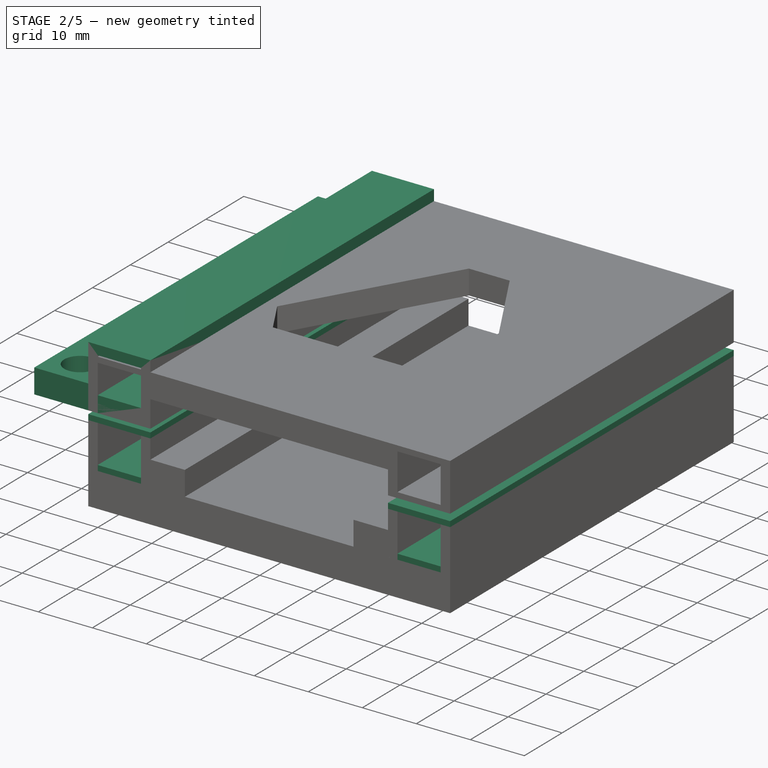
[diagram: stage 2 of 5 — iso view after this stage's code; geometry added in this stage tinted green]
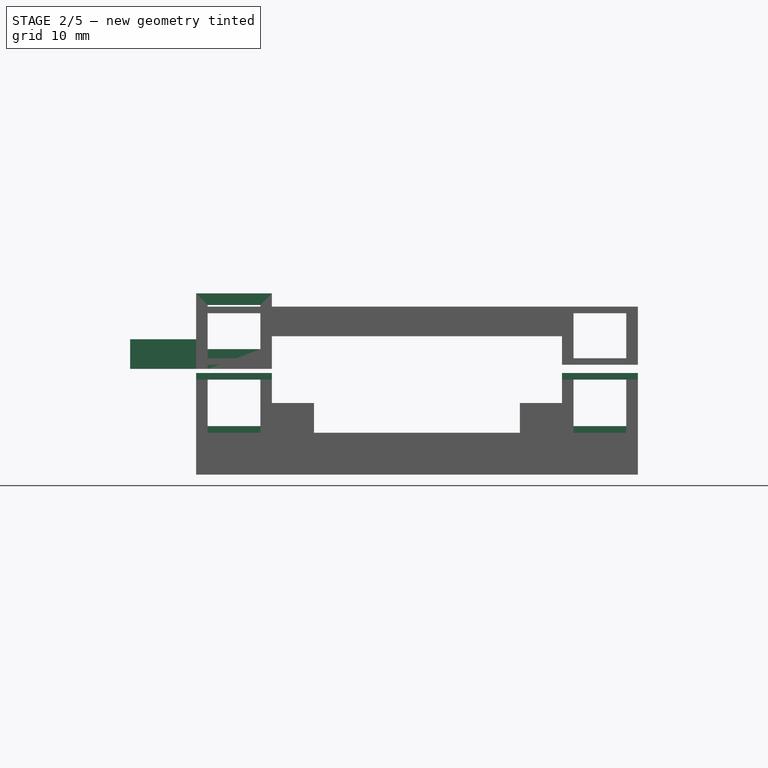
[diagram: stage 2 of 5 — front view after this stage's code; geometry added in this stage tinted green]
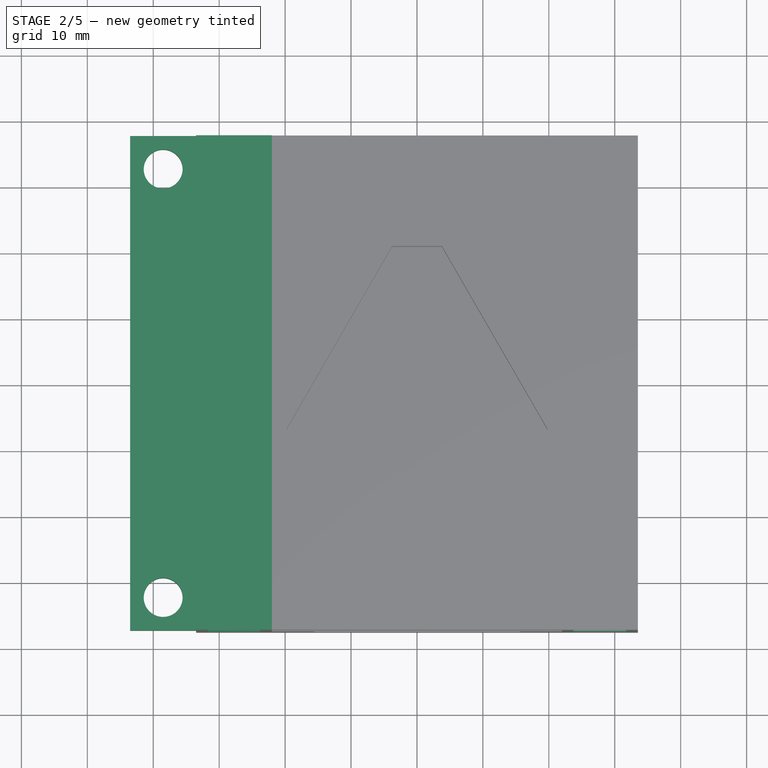
[diagram: stage 2 of 5 — top view after this stage's code; geometry added in this stage tinted green]
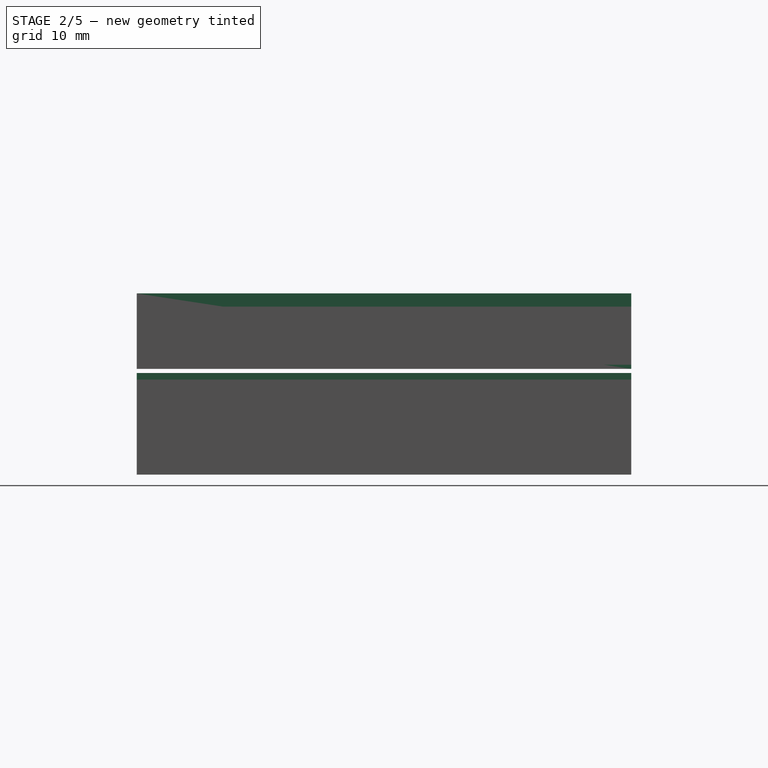
[diagram: stage 2 of 5 — right view after this stage's code; geometry added in this stage tinted green]
FEATURE [PartDesign::Body] Body003  label="kinematicBase-large-bottom-rods"
  AutoGroupSolids = false
  ClaimAllChildren = false
  ExportMode = 0
  Group = -> [Sketch014,Pad011,Sketch015,Sketch016,Sketch017,Pad012,Pad015,Sketch019,Pad013,Pad016,Sketch020,Pad014,Sketch018,Pad017,Pad018]
  Origin = -> Origin003
  Tip = -> Pad018
  TreeRank = 64
  _ExportChildren = -> [Pad011,Pad012,Pad015,Pad013,Pad016,Pad014,Pad017,Pad018]
  _GroupVersion = 1
FEATURE [Sketcher::SketchObject] Sketch021
  ArcFitTolerance = 1e-06
  AttachmentSupport = -> [XZ_Plane004]
  ExternalBSplineMaxDegree = 5
  ExternalBSplineTolerance = 0.0001
  FullyConstrained = true
  InternalTolerance = 1e-06
  MakeInternals = false
  MapMode = 5
  Placement = pos=(0,0,0) rot=(1,0,0;1.5708rad)
  Support = -> [XZ_Plane004]
  TreeRank = 80
  expr: Constraints[14] = Spreadsheet.socketFloorClearance
  expr: Constraints[16] = Spreadsheet.socketDiameter
  expr: Constraints[17] = Spreadsheet.plateWidth
  expr: Constraints[9] = Spreadsheet.ballDiameter
  sketch-geometry (7):
    g0: LineSegment StartX=-15.875 StartY=-9.675 StartZ=0 EndX=15.875 EndY=-9.675 EndZ=0
    g1: LineSegment StartX=15.875 StartY=-9.675 StartZ=0 EndX=15.875 EndY=-16.025 EndZ=0
    g2: LineSegment StartX=15.875 StartY=-16.025 StartZ=0 EndX=-15.875 EndY=-16.025 EndZ=0
    g3: LineSegment StartX=-15.875 StartY=-16.025 StartZ=0 EndX=-15.875 EndY=-9.675 EndZ=0
    g4: Circle [constr] CenterX=0 CenterY=0 CenterZ=0 NormalX=0 NormalY=0 NormalZ=1 AngleXU=0 Radius=9.525
    g5: LineSegment [constr] StartX=0 StartY=0 StartZ=0 EndX=0 EndY=-9.525 EndZ=0
    g6: LineSegment [constr] StartX=0 StartY=-9.525 StartZ=0 EndX=0 EndY=-9.675 EndZ=0
  constraints (19):
    c: Coincident(g0,g1)
    c: Coincident(g1,g2)
    c: Coincident(g2,g3)
    c: Coincident(g3,g0)
    c: Horizontal(g0)
    c: Horizontal(g2)
    c: Vertical(g1)
    c: Vertical(g3)
    c: Coincident(g4,g-1)
    c: Diameter(g4) = 19.05
    c: Coincident(g5,g4)
    c: PointOnObject(g5,g4)
    c: Coincident(g6,g5)
    c: Parallel(g6,g5)
    c: DistanceY(g6,g6) = 0.15
    c: Vertical(g5)
    c: DistanceY(g1,g1) = 6.35
    c: DistanceX(g2,g2) = 31.75
    c: Symmetric(g0,g0,g6)
FEATURE [PartDesign::Pad] Pad019
  AddSubType = 0
  AlongSketchNormal = false
  AutoTaperInnerAngle = true
  CheckUpToFaceLimits = true
  ClaimChildren = false
  Direction = (0,-1,2e-16)
  Fit = 0
  FitJoin = 0
  InnerFit = 0
  InnerFitJoin = 0
  Length = 60
  Length2 = 100
  Linearize = true
  Midplane = true
  NewSolid = false
  Profile = -> Sketch021
  Refine = true
  Suppress = false
  TaperInnerAngle = 0
  TaperInnerAngleRev = 0
  TreeRank = 81
  Type = 0
  _ProfileBasedVersion = 1
  expr: Length = Spreadsheet.socketLength
FEATURE [PartDesign::Body] Body002  label="kinematicBase-large-bottom-retainer"
  AutoGroupSolids = false
  ClaimAllChildren = false
  ExportMode = 0
  Group = -> [Sketch005,Pad004,Sketch007,Sketch008,Sketch009,Pad005,Pad008,Sketch012,Pad006,Pad021,Sketch023,Pad009,Sketch013,Pad007,Sketch010,Pad010]
  Origin = -> Origin002
  Tip = -> Pad010
  TreeRank = 41
  _ExportChildren = -> [Pad004,Pad005,Pad008,Pad006,Pad021,Pad009,Pad007,Pad010]
  _GroupVersion = 1
FEATURE [Sketcher::SketchObject] Sketch024
  ArcFitTolerance = 1e-06
  AttachmentSupport = -> [XY_Plane005]
  ExternalBSplineMaxDegree = 5
  ExternalBSplineTolerance = 0.0001
  FullyConstrained = true
  InternalTolerance = 1e-06
  MakeInternals = false
  MapMode = 5
  Support = -> [XY_Plane005]
  TreeRank = 125
  expr: Constraints[41] = Spreadsheet.screwHole
  expr: Constraints[42] = Spreadsheet.screwHead * 0.5
  expr: Constraints[50] = Spreadsheet.screwHead
  expr: Constraints[51] = Spreadsheet.screwHead * 0.5
  expr: Constraints[54] = Spreadsheet.augmentationWidth
  expr: Constraints[55] = Spreadsheet.augmentationLength
  expr: Constraints[59] = Spreadsheet.augmentationOffset
  expr: Constraints[8] = Spreadsheet.augmentationWall
  sketch-geometry (22):
    g0: LineSegment StartX=-23.75 StartY=37.5 StartZ=0 EndX=-22 EndY=37.5 EndZ=0
    g1: LineSegment StartX=-22 StartY=37.5 StartZ=0 EndX=-22 EndY=-37.5 EndZ=0
    g2: LineSegment StartX=-22 StartY=-37.5 StartZ=0 EndX=-23.75 EndY=-37.5 EndZ=0
    g3: LineSegment StartX=-23.75 StartY=-37.5 StartZ=0 EndX=-23.75 EndY=37.5 EndZ=0
    g4: LineSegment StartX=-23.75 StartY=-37.5 StartZ=0 EndX=-31.75 EndY=-37.5 EndZ=0
    g5: LineSegment StartX=-31.75 StartY=-37.5 StartZ=0 EndX=-33.5 EndY=-37.5 EndZ=0
    g6: LineSegment StartX=-33.5 StartY=-37.5 StartZ=0 EndX=-33.5 EndY=37.5 EndZ=0
    g7: LineSegment StartX=-33.5 StartY=37.5 StartZ=0 EndX=-31.75 EndY=37.5 EndZ=0
    g8: LineSegment StartX=-31.75 StartY=37.5 StartZ=0 EndX=-31.75 EndY=-37.5 EndZ=0
    g9: Circle CenterX=-38.5 CenterY=32.5 CenterZ=0 NormalX=0 NormalY=0 NormalZ=1 AngleXU=0 Radius=2.95
    g10: LineSegment [constr] StartX=-38.5 StartY=32.5 StartZ=0 EndX=-38.5 EndY=35.45 EndZ=0
    g11: LineSegment [constr] StartX=-38.5 StartY=35.45 StartZ=0 EndX=-38.5 EndY=37.5 EndZ=0
    g12: LineSegment [constr] StartX=-38.5 StartY=37.5 StartZ=0 EndX=-33.5 EndY=37.5 EndZ=0
    g13: LineSegment [constr] StartX=-33.5 StartY=-37.5 StartZ=0 EndX=-38.5 EndY=-37.5 EndZ=0
    g14: LineSegment [constr] StartX=-38.5 StartY=-37.5 StartZ=0 EndX=-38.5 EndY=-35.45 EndZ=0
    g15: LineSegment [constr] StartX=-38.5 StartY=-35.45 StartZ=0 EndX=-38.5 EndY=-32.5 EndZ=0
    g16: Circle CenterX=-38.5 CenterY=-32.5 CenterZ=0 NormalX=0 NormalY=0 NormalZ=1 AngleXU=0 Radius=2.95
    g17: LineSegment StartX=-33.5 StartY=37.5 StartZ=0 EndX=-43.5 EndY=37.5 EndZ=0
    g18: LineSegment StartX=-43.5 StartY=37.5 StartZ=0 EndX=-43.5 EndY=-37.5 EndZ=0
    g19: LineSegment StartX=-43.5 StartY=-37.5 StartZ=0 EndX=-33.5 EndY=-37.5 EndZ=0
    g20: LineSegment StartX=-31.75 StartY=37.5 StartZ=0 EndX=-23.75 EndY=37.5 EndZ=0
    g21: LineSegment [constr] StartX=0 StartY=0 StartZ=0 EndX=-22 EndY=0 EndZ=0
  constraints (60):
    c: Coincident(g0,g1)
    c: Coincident(g1,g2)
    c: Coincident(g2,g3)
    c: Coincident(g3,g0)
    c: Horizontal(g0)
    c: Horizontal(g2)
    c: Vertical(g1)
    c: Vertical(g3)
    c: DistanceX(g2,g2) = 1.75
    c: Coincident(g4,g2)
    c: Horizontal(g4)
    c: Coincident(g5,g6)
    c: Coincident(g6,g7)
    c: Coincident(g7,g8)
    c: Coincident(g8,g5)
    c: Horizontal(g5)
    c: Horizontal(g7)
    c: Vertical(g6)
    c: Vertical(g8)
    c: Coincident(g5,g4)
    c: Equal(g5,g2)
    c: Equal(g6,g1)
    c: Coincident(g10,g9)
    c: PointOnObject(g10,g9)
    c: Vertical(g10)
    c: Coincident(g11,g10)
    c: Coincident(g12,g11)
    c: Coincident(g12,g7)
    c: Horizontal(g12)
    c: Vertical(g11)
    c: Coincident(g13,g5)
    c: Horizontal(g13)
    c: Coincident(g14,g13)
    c: Vertical(g14)
    c: Coincident(g15,g14)
    c: Vertical(g15)
    c: Coincident(g16,g15)
    c: PointOnObject(g14,g16)
    c: Equal(g16,g9)
    c: Equal(g14,g11)
    c: Equal(g12,g13)
    c: Diameter(g16) = 5.9
    c: DistanceY(g13,g15) = 5
    c: Coincident(g17,g7)
    c: Horizontal(g17)
    c: Coincident(g18,g17)
    c: Vertical(g18)
    c: Coincident(g19,g18)
    c: Coincident(g19,g5)
    c: Horizontal(g19)
    c: DistanceX(g19,g19) = 10
    c: DistanceX(g14,g5) = 5
    c: Coincident(g20,g7)
    c: Coincident(g20,g0)
    c: DistanceX(g4,g4) = 8
    c: DistanceY(g1,g1) = 75
    c: Coincident(g21,g-1)
    c: Horizontal(g21)
    c: Symmetric(g1,g1,g21)
    c: DistanceX(g21,g21) = 22
FEATURE [PartDesign::Pad] Pad022
  AddSubType = 0
  AlongSketchNormal = false
  AutoTaperInnerAngle = true
  CheckUpToFaceLimits = true
  ClaimChildren = false
  Direction = (0,0,1)
  Fit = 0
  FitJoin = 0
  InnerFit = 0
  InnerFitJoin = 0
  Length = 9.7
  Length2 = 100
  Linearize = true
  NewSolid = false
  Profile = -> Sketch024 [Edge6,Edge7,Edge8,Edge9,Edge10,Edge4,Edge3,Edge2]
  Refine = true
  Suppress = false
  TaperInnerAngle = 0
  TaperInnerAngleRev = 0
  TreeRank = 126
  Type = 0
  _ProfileBasedVersion = 1
  expr: Length = Spreadsheet.augmentationHeight
FEATURE [Sketcher::SketchObject] Sketch025
  ArcFitTolerance = 1e-06
  AttachmentSupport = -> [Pad022]
  ExternalBSplineMaxDegree = 5
  ExternalBSplineTolerance = 0.0001
  ExternalGeometry = -> [Pad022]
  FullyConstrained = true
  InternalTolerance = 1e-06
  MakeInternals = false
  MapMode = 5
  Placement = pos=(0,0,9.7) rot=(0,0,1;0rad)
  Support = -> [Pad022]
  TreeRank = 131
  sketch-geometry (2):
    g0: LineSegment StartX=-33.5 StartY=-37.5 StartZ=0 EndX=-22 EndY=-37.5 EndZ=0
    g1: LineSegment StartX=-22 StartY=37.5 StartZ=0 EndX=-33.5 EndY=37.5 EndZ=0
  constraints (4):
    c: Coincident(g0,g-3)
    c: Coincident(g0,g-4)
    c: Coincident(g1,g-4)
    c: Coincident(g1,g-3)
FEATURE [PartDesign::Pad] Pad024
  AddSubType = 0
  AlongSketchNormal = false
  AutoTaperInnerAngle = true
  BaseFeature = -> Pad022
  CheckUpToFaceLimits = true
  ClaimChildren = false
  Direction = (0,0,1)
  Fit = 0
  FitJoin = 0
  InnerFit = 0
  InnerFitJoin = 0
  Length = 1.75
  Length2 = 100
  Linearize = true
  NewSolid = false
  Profile = -> Sketch025
  Refine = true
  Suppress = false
  TaperInnerAngle = 0
  TaperInnerAngleRev = 0
  TreeRank = 132
  Type = 0
  _ProfileBasedVersion = 1
  expr: Length = Spreadsheet.augmentationWall
FEATURE [PartDesign::Pad] Pad023
  AddSubType = 0
  AlongSketchNormal = false
  AutoTaperInnerAngle = true
  BaseFeature = -> Pad024
  CheckUpToFaceLimits = true
  ClaimChildren = false
  Direction = (0,0,1)
  Fit = 0
  FitJoin = 0
  InnerFit = 0
  InnerFitJoin = 0
  Length = 4.5
  Length2 = 100
  Linearize = true
  NewSolid = false
  Profile = -> Sketch024 [Edge3,Edge13,Edge12,Edge11,Edge15,Edge14]
  Refine = true
  Suppress = false
  TaperInnerAngle = 0
  TaperInnerAngleRev = 0
  TreeRank = 130
  Type = 0
  _ProfileBasedVersion = 1
FEATURE [PartDesign::Pad] Pad025
  AddSubType = 0
  AlongSketchNormal = false
  AutoTaperInnerAngle = true
  BaseFeature = -> Pad023
  CheckUpToFaceLimits = true
  ClaimChildren = false
  Direction = (0,0,1)
  Fit = 0
  FitJoin = 0
  InnerFit = 0
  InnerFitJoin = 0
  Length = 3
  Length2 = 100
  Linearize = true
  NewSolid = false
  Profile = -> Sketch024 [Edge1,Edge9,Edge5,Edge10]
  Refine = true
  Suppress = false
  TaperInnerAngle = 0
  TaperInnerAngleRev = 0
  TreeRank = 133
  Type = 0
  _ProfileBasedVersion = 1
  expr: Length = Spreadsheet.augmentationFill
FEATURE [PartDesign::Pad] Pad028
  AddSubType = 0
  AlongSketchNormal = false
  AutoTaperInnerAngle = true
  BaseFeature = -> Pad027
  CheckUpToFaceLimits = true
  ClaimChildren = false
  Direction = (0,0,1)
  Fit = 0
  FitJoin = 0
  InnerFit = 0
  InnerFitJoin = 0
  Length = 1
  Length2 = 100
  Linearize = true
  NewSolid = false
  Profile = -> Sketch027 [Edge10,Edge9,Edge3,Edge1,Edge22,Edge26,Edge14,Edge16]
  Refine = true
  Suppress = false
  TaperInnerAngle = 0
  TaperInnerAngleRev = 0
  TreeRank = 148
  Type = 0
  _ProfileBasedVersion = 1
  expr: Length = Spreadsheet.socketAugmentationFill
FEATURE [Sketcher::SketchObject] Sketch028
  ArcFitTolerance = 1e-06
  AttachmentSupport = -> [Pad028]
  ExternalBSplineMaxDegree = 5
  ExternalBSplineTolerance = 0.0001
  ExternalGeometry = -> [Pad028]
  FullyConstrained = true
  InternalTolerance = 1e-06
  MakeInternals = false
  MapMode = 5
  Placement = pos=(0,0,-1.625) rot=(0,0,1;0rad)
  Support = -> [Pad028]
  TreeRank = 149
  sketch-geometry (4):
    g0: LineSegment StartX=-33.5 StartY=-37.5 StartZ=0 EndX=-22 EndY=-37.5 EndZ=0
    g1: LineSegment StartX=-33.5 StartY=37.5 StartZ=0 EndX=-22 EndY=37.5 EndZ=0
    g2: LineSegment StartX=22 StartY=-37.5 StartZ=0 EndX=33.5 EndY=-37.5 EndZ=0
    g3: LineSegment StartX=22 StartY=37.5 StartZ=0 EndX=33.5 EndY=37.5 EndZ=0
  constraints (8):
    c: Coincident(g0,g-3)
    c: Coincident(g0,g-4)
    c: Coincident(g1,g-3)
    c: Coincident(g1,g-4)
    c: Coincident(g2,g-5)
    c: Coincident(g2,g-6)
    c: Coincident(g3,g-5)
    c: Coincident(g3,g-6)
FEATURE [PartDesign::Pad] Pad029
  AddSubType = 0
  AlongSketchNormal = false
  AutoTaperInnerAngle = true
  BaseFeature = -> Pad028
  CheckUpToFaceLimits = true
  ClaimChildren = false
  Direction = (0,0,1)
  Fit = 0
  FitJoin = 0
  InnerFit = 0
  InnerFitJoin = 0
  Length = 1
  Length2 = 100
  Linearize = true
  NewSolid = false
  Profile = -> Sketch028
  Refine = true
  Suppress = false
  TaperInnerAngle = 0
  TaperInnerAngleRev = 0
  TreeRank = 150
  Type = 0
  _ProfileBasedVersion = 1
  expr: Length = Spreadsheet.socketAugmentationBarrier
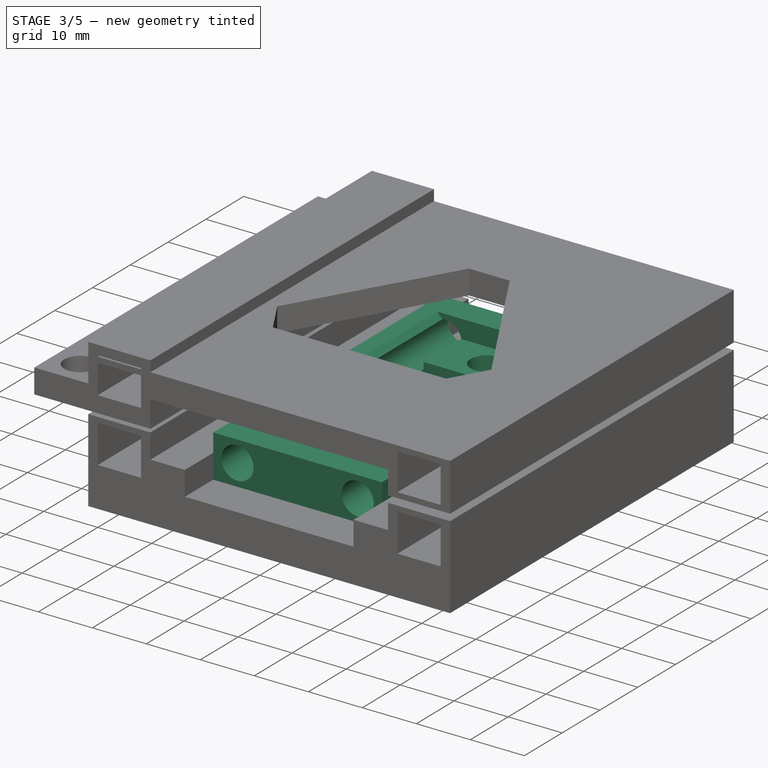
[diagram: stage 3 of 5 — iso view after this stage's code; geometry added in this stage tinted green]
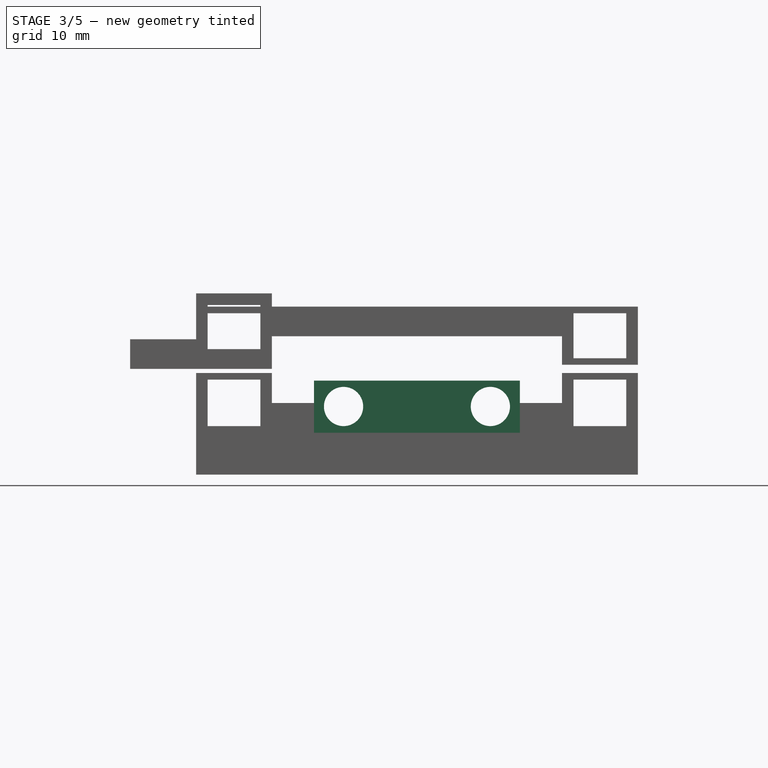
[diagram: stage 3 of 5 — front view after this stage's code; geometry added in this stage tinted green]
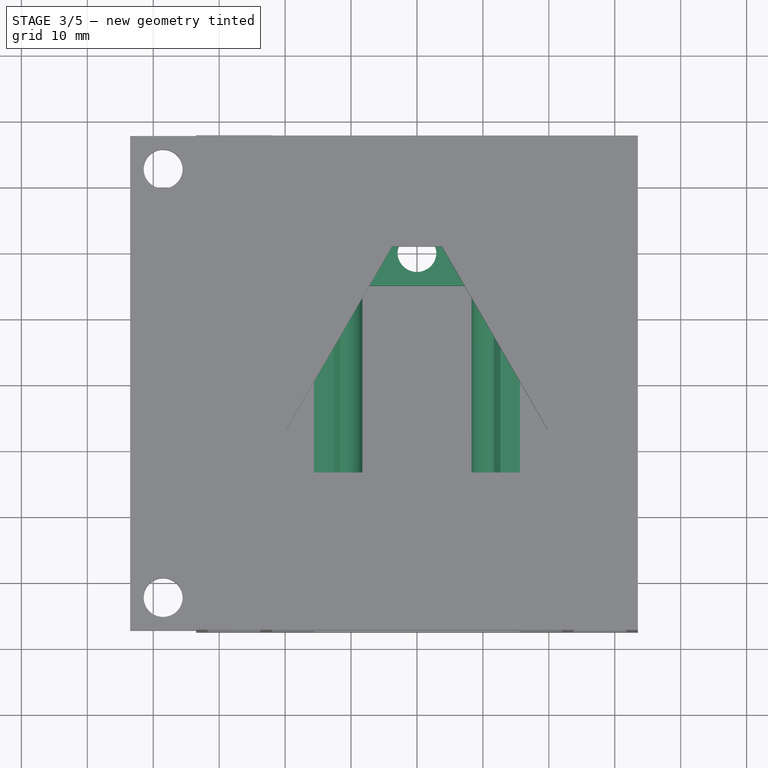
[diagram: stage 3 of 5 — top view after this stage's code; geometry added in this stage tinted green]
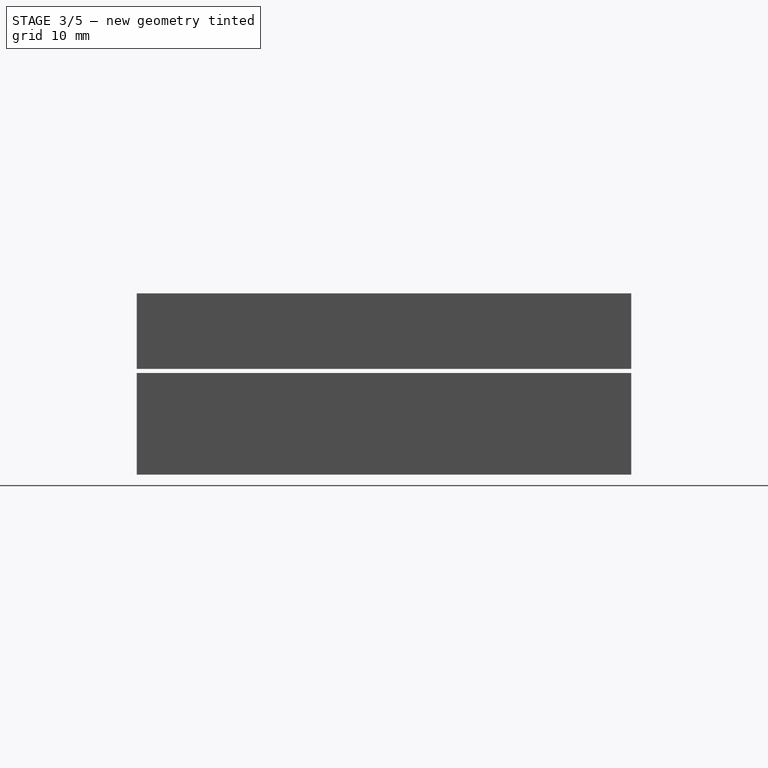
[diagram: stage 3 of 5 — right view after this stage's code; geometry added in this stage tinted green]
FEATURE [Sketcher::SketchObject] Sketch013
  ArcFitTolerance = 1e-06
  AttachmentSupport = -> [Pad006]
  ExternalBSplineMaxDegree = 5
  ExternalBSplineTolerance = 0.0001
  ExternalGeometry = -> [Pad006]
  FullyConstrained = true
  InternalTolerance = 1e-06
  MakeInternals = false
  MapMode = 5
  Placement = pos=(0,30,2.7e-14) rot=(0,0.707107,0.707107;3.14159rad)
  Support = -> [Pad006]
  TreeRank = 61
  sketch-geometry (2):
    g0: LineSegment StartX=15.611 StartY=-1.7702 StartZ=0 EndX=-15.611 EndY=-1.7702 EndZ=0
    g1: LineSegment StartX=15.611 StartY=-9.675 StartZ=0 EndX=-15.611 EndY=-9.675 EndZ=0
  constraints (4):
    c: Coincident(g0,g-3)
    c: Coincident(g0,g-4)
    c: Coincident(g1,g-3)
    c: Coincident(g1,g-4)
FEATURE [Sketcher::SketchObject] Sketch014
  ArcFitTolerance = 1e-06
  AttachmentSupport = -> [XZ_Plane003]
  ExternalBSplineMaxDegree = 5
  ExternalBSplineTolerance = 0.0001
  FullyConstrained = true
  InternalTolerance = 1e-06
  MakeInternals = false
  MapMode = 5
  Placement = pos=(0,0,0) rot=(1,0,0;1.5708rad)
  Support = -> [XZ_Plane003]
  TreeRank = 42
  expr: Constraints[18] = Spreadsheet.socketWall
  expr: Constraints[1] = Spreadsheet.ballDiameter
  expr: Constraints[23] = Spreadsheet.retainerOverhang
  expr: Constraints[30] = Spreadsheet.socketRodClearance
  expr: Constraints[39] = Spreadsheet.socketRodFit
  expr: Constraints[40] = Spreadsheet.minimumWall
  expr: Constraints[48] = Spreadsheet.socketOverhangAngle
  expr: Constraints[9] = Spreadsheet.socketFloorClearance
  sketch-geometry (35):
    g0: Circle [constr] CenterX=0 CenterY=0 CenterZ=0 NormalX=0 NormalY=0 NormalZ=1 AngleXU=0 Radius=9.525
    g1: LineSegment [constr] StartX=-8.47884 StartY=-4.33993 StartZ=0 EndX=0 EndY=0 EndZ=0
    g2: LineSegment [constr] StartX=0 StartY=-9.675 StartZ=0 EndX=0 EndY=-9.525 EndZ=0
    g3: LineSegment [constr] StartX=0 StartY=-9.525 StartZ=0 EndX=0 EndY=0 EndZ=0
    g4: ArcOfCircle CenterX=-11.136 CenterY=-5.7 CenterZ=0 NormalX=0 NormalY=0 NormalZ=1 AngleXU=0 Radius=2.975 StartAngle=1.74533 EndAngle=6.00849
    g5: LineSegment StartX=-15.611 StartY=-1.7702 StartZ=0 EndX=-15.611 EndY=-9.675 EndZ=0
    g6: LineSegment [constr] StartX=-11.136 StartY=-5.7 StartZ=0 EndX=-14.111 EndY=-5.7 EndZ=0
    g7: LineSegment [constr] StartX=-14.111 StartY=-5.7 StartZ=0 EndX=-15.611 EndY=-5.7 EndZ=0
    g8: LineSegment [constr] StartX=-11.136 StartY=-5.7 StartZ=0 EndX=-11.136 EndY=-8.675 EndZ=0
    g9: ArcOfCircle [constr] CenterX=0 CenterY=0 CenterZ=0 NormalX=0 NormalY=0 NormalZ=1 AngleXU=0 Radius=9.525 StartAngle=3.14159 EndAngle=3.37121
    g10: ArcOfCircle [constr] CenterX=-11.136 CenterY=-5.7 CenterZ=0 NormalX=0 NormalY=0 NormalZ=1 AngleXU=0 Radius=2.975 StartAngle=-9e-16 EndAngle=1.74533
    g11: LineSegment [constr] StartX=-8.47884 StartY=-4.33993 StartZ=0 EndX=-8.48774 EndY=-4.34448 EndZ=0
    g12: LineSegment [constr] StartX=-8.48774 StartY=-4.34448 StartZ=0 EndX=-11.136 EndY=-5.7 EndZ=0
    g13: LineSegment StartX=-11.6526 StartY=-2.7702 StartZ=0 EndX=-12.6526 EndY=-1.7702 EndZ=0
    g14: LineSegment StartX=-12.6526 StartY=-1.7702 StartZ=0 EndX=-15.611 EndY=-1.7702 EndZ=0
    g15: LineSegment [constr] StartX=-11.136 StartY=-5.7 StartZ=0 EndX=-8.16098 EndY=-5.7 EndZ=0
    g16: LineSegment [constr] StartX=-11.136 StartY=-5.7 StartZ=0 EndX=-11.136 EndY=-2.725 EndZ=0
    g17: LineSegment [constr] StartX=-11.136 StartY=-2.725 StartZ=0 EndX=-11.6526 EndY=-2.7702 EndZ=0
    g18: LineSegment [constr] StartX=0 StartY=0 StartZ=0 EndX=-7.48654 EndY=-5.88875 EndZ=0
    g19: LineSegment [constr] StartX=-7.48654 StartY=-5.88875 StartZ=0 EndX=-8.27252 EndY=-6.50699 EndZ=0
    g20: LineSegment [constr] StartX=-11.6526 StartY=-2.7702 StartZ=0 EndX=-8.27252 EndY=-6.50699 EndZ=0
    g21: LineSegment [constr] StartX=-13.1317 StartY=-3.49368 StartZ=0 EndX=-9.14029 EndY=-7.90632 EndZ=0
    g22: LineSegment [constr] StartX=-11.6526 StartY=-2.7702 StartZ=0 EndX=-12.826 EndY=-3.8316 EndZ=0
    g23: LineSegment [constr] StartX=0 StartY=-9.675 StartZ=0 EndX=-8.27252 EndY=-9.675 EndZ=0
    g24: LineSegment StartX=-8.27252 StartY=-9.675 StartZ=0 EndX=-8.27252 EndY=-6.50699 EndZ=0
    g25: LineSegment StartX=-8.27252 StartY=-9.675 StartZ=0 EndX=-15.611 EndY=-9.675 EndZ=0
    g26: LineSegment [constr] StartX=8.27252 StartY=-9.675 StartZ=0 EndX=0 EndY=-9.675 EndZ=0
    g27: LineSegment StartX=8.27252 StartY=-9.675 StartZ=0 EndX=8.27252 EndY=-6.50699 EndZ=0
    g28: LineSegment StartX=8.27252 StartY=-9.675 StartZ=0 EndX=15.611 EndY=-9.675 EndZ=0
    g29: LineSegment StartX=15.611 StartY=-9.675 StartZ=0 EndX=15.611 EndY=-1.7702 EndZ=0
    g30: LineSegment StartX=15.611 StartY=-1.7702 StartZ=0 EndX=12.6526 EndY=-1.7702 EndZ=0
    g31: LineSegment StartX=12.6526 StartY=-1.7702 StartZ=0 EndX=11.6526 EndY=-2.7702 EndZ=0
    g32: ArcOfCircle CenterX=11.136 CenterY=-5.7 CenterZ=0 NormalX=0 NormalY=0 NormalZ=1 AngleXU=0 Radius=2.975 StartAngle=3.41629 EndAngle=7.67945
    g33: LineSegment [constr] StartX=11.136 StartY=-5.7 StartZ=0 EndX=14.111 EndY=-5.7 EndZ=0
    g34: LineSegment [constr] StartX=14.111 StartY=-5.7 StartZ=0 EndX=15.611 EndY=-5.7 EndZ=0
  constraints (105):
    c: Coincident(g0,g-1)
    c: Diameter(g0) = 19.05
    c: PointOnObject(g1,g0)
    c: Coincident(g1,g0)
    c: PointOnObject(g2,g0)
    c: Vertical(g2)
    c: Coincident(g3,g2)
    c: Coincident(g3,g0)
    c: Vertical(g3)
    c: DistanceY(g2,g2) = 0.15
    c: Vertical(g5)
    c: PointOnObject(g8,g4)
    c: Coincident(g6,g4)
    c: PointOnObject(g6,g4)
    c: Horizontal(g6)
    c: Coincident(g7,g6)
    c: PointOnObject(g7,g5)
    c: Horizontal(g7)
    c: DistanceX(g7,g7) = 1.5
    c: Coincident(g8,g4)
    c: Vertical(g8)
    c: Coincident(g9,g0)
    c: PointOnObject(g9,g-1)
    c: DistanceX(g9,g9) = 0.25
    c: PointOnObject(g9,g0)
    c: Coincident(g10,g4)
    c: Coincident(g10,g4)
    c: Coincident(g11,g1)
    c: PointOnObject(g11,g10)
    c: Parallel(g11,g1)
    c: Distance(g11) = 0.01
    c: Coincident(g12,g11)
    c: Coincident(g12,g4)
    c: Parallel(g1,g12)
    c: Coincident(g13,g4)
    c: Coincident(g14,g5)
    c: Horizontal(g14)
    c: Coincident(g14,g13)
    c: Angle(g14,g13) = 2.35619
    c: Diameter(g4) = 5.95
    c: DistanceY(g4,g13) = 1
    c: Coincident(g15,g4)
    c: Horizontal(g15)
    c: PointOnObject(g10,g15)
    c: Coincident(g16,g4)
    c: PointOnObject(g16,g10)
    c: Vertical(g16)
    c: Coincident(g17,g16)
    c: Angle(g17,g16) = 1.48353
    c: PointOnObject(g4,g17)
    c: PointOnObject(g17,g10)
    c: PointOnObject(g15,g10)
    c: Coincident(g18,g0)
    c: PointOnObject(g18,g0)
    c: Coincident(g19,g18)
    c: Coincident(g19,g4)
    c: Parallel(g19,g18)
    c: Distance(g19) = 1
    c: Coincident(g20,g4)
    c: Coincident(g20,g4)
    c: PointOnObject(g21,g4)
    c: PointOnObject(g21,g4)
    c: PointOnObject(g4,g21)
    c: Parallel(g21,g20)
    c: Coincident(g22,g4)
    c: PointOnObject(g22,g21)
    c: Perpendicular(g20,g22)
    c: Distance(g22,g21) = 0.455652
    c: Coincident(g23,g2)
    c: Horizontal(g23)
    c: Coincident(g24,g4)
    c: Vertical(g24)
    c: Coincident(g23,g24)
    c: DistanceY(g23,g8) = 1
    c: Coincident(g25,g23)
    c: Coincident(g25,g5)
    c: Horizontal(g25)
    c: DistanceY(g24,g24) = 3.16801
    c: Coincident(g26,g2)
    c: Horizontal(g26)
    c: Coincident(g27,g26)
    c: Vertical(g27)
    c: Coincident(g28,g26)
    c: Horizontal(g28)
    c: Vertical(g29)
    c: Coincident(g30,g29)
    c: Horizontal(g30)
    c: Coincident(g31,g30)
    c: Coincident(g32,g31)
    c: Coincident(g32,g27)
    c: Equal(g4,g32)
    c: Equal(g27,g24)
    c: Equal(g29,g5)
    c: Equal(g30,g14)
    c: Equal(g13,g31)
    c: Angle(g31,g30) = 2.35619
    c: Coincident(g29,g28)
    c: Coincident(g33,g32)
    c: PointOnObject(g33,g32)
    c: Horizontal(g33)
    c: Coincident(g34,g33)
    c: PointOnObject(g34,g29)
    c: Horizontal(g34)
    c: Equal(g34,g7)
    c: Equal(g26,g23)
FEATURE [PartDesign::Pad] Pad011
  AddSubType = 0
  AlongSketchNormal = false
  AutoTaperInnerAngle = true
  CheckUpToFaceLimits = true
  ClaimChildren = false
  Direction = (0,-1,-2e-16)
  Fit = 0
  FitJoin = 0
  InnerFit = 0
  InnerFitJoin = 0
  Length = 60
  Length2 = 100
  Linearize = true
  Midplane = true
  NewSolid = false
  Profile = -> Sketch014
  Refine = true
  Suppress = false
  TaperInnerAngle = 0
  TaperInnerAngleRev = 0
  TreeRank = 47
  Type = 0
  _ProfileBasedVersion = 1
  expr: Length = Spreadsheet.socketLength
FEATURE [Sketcher::SketchObject] Sketch015
  ArcFitTolerance = 1e-06
  AttachmentSupport = -> [Sketch014]
  ExternalBSplineMaxDegree = 5
  ExternalBSplineTolerance = 0.0001
  ExternalGeometry = -> [Sketch014,Pad011]
  FullyConstrained = true
  InternalTolerance = 1e-06
  MakeInternals = false
  MapMode = 5
  Placement = pos=(0,0,0) rot=(-1,0,0;1.5708rad)
  Support = -> [Sketch014]
  TreeRank = 48
  sketch-geometry (2):
    g0: Circle CenterX=-11.136 CenterY=5.7 CenterZ=0 NormalX=0 NormalY=0 NormalZ=1 AngleXU=0 Radius=2.975
    g1: Circle CenterX=11.136 CenterY=5.7 CenterZ=0 NormalX=0 NormalY=0 NormalZ=1 AngleXU=0 Radius=2.975
  constraints (4):
    c: Coincident(g0,g-3)
    c: Coincident(g1,g-4)
    c: Equal(g1,g-4)
    c: Equal(g0,g-3)
FEATURE [Sketcher::SketchObject] Sketch016
  ArcFitTolerance = 1e-06
  AttachmentSupport = -> [Pad011]
  ExternalBSplineMaxDegree = 5
  ExternalBSplineTolerance = 0.0001
  ExternalGeometry = -> [Pad011]
  FullyConstrained = true
  InternalTolerance = 1e-06
  MakeInternals = false
  MapMode = 5
  Placement = pos=(0,30,6.7e-15) rot=(0,0.707107,0.707107;3.14159rad)
  Support = -> [Pad011]
  TreeRank = 49
  expr: Constraints[10] = Spreadsheet.socketFloor
  sketch-geometry (4):
    g0: LineSegment StartX=-15.611 StartY=-9.675 StartZ=0 EndX=15.611 EndY=-9.675 EndZ=0
    g1: LineSegment StartX=15.611 StartY=-9.675 StartZ=0 EndX=15.611 EndY=-5.175 EndZ=0
    g2: LineSegment StartX=15.611 StartY=-5.175 StartZ=0 EndX=-15.611 EndY=-5.175 EndZ=0
    g3: LineSegment StartX=-15.611 StartY=-5.175 StartZ=0 EndX=-15.611 EndY=-9.675 EndZ=0
  constraints (11):
    c: Coincident(g0,g1)
    c: Coincident(g1,g2)
    c: Coincident(g2,g3)
    c: Coincident(g3,g0)
    c: Horizontal(g0)
    c: Horizontal(g2)
    c: Vertical(g1)
    c: Vertical(g3)
    c: Coincident(g0,g-3)
    c: PointOnObject(g-4,g1)
    c: DistanceY(g1,g1) = 4.5
FEATURE [PartDesign::Pad] Pad012
  AddSubType = 0
  AlongSketchNormal = false
  AutoTaperInnerAngle = true
  BaseFeature = -> Pad011
  CheckUpToFaceLimits = true
  ClaimChildren = false
  Direction = (0,1,2e-16)
  Fit = 0
  FitJoin = 0
  InnerFit = 0
  InnerFitJoin = 0
  Length = 15
  Length2 = 100
  Linearize = true
  NewSolid = false
  Profile = -> Sketch016
  Refine = true
  Reversed = true
  Suppress = false
  TaperInnerAngle = 0
  TaperInnerAngleRev = 0
  TreeRank = 51
  Type = 0
  _ProfileBasedVersion = 1
  expr: Length = Spreadsheet.socketBridge
FEATURE [Sketcher::SketchObject] Sketch017
  ArcFitTolerance = 1e-06
  AttachmentSupport = -> [Pad011]
  ExternalBSplineMaxDegree = 5
  ExternalBSplineTolerance = 0.0001
  ExternalGeometry = -> [Pad011]
  FullyConstrained = true
  InternalTolerance = 1e-06
  MakeInternals = false
  MapMode = 5
  Placement = pos=(0,-30,-6.7e-15) rot=(1,0,0;1.5708rad)
  Support = -> [Pad011]
  TreeRank = 50
  expr: Constraints[10] = Spreadsheet.socketFloor
  sketch-geometry (4):
    g0: LineSegment StartX=-15.611 StartY=-9.675 StartZ=0 EndX=15.611 EndY=-9.675 EndZ=0
    g1: LineSegment StartX=15.611 StartY=-9.675 StartZ=0 EndX=15.611 EndY=-5.175 EndZ=0
    g2: LineSegment StartX=15.611 StartY=-5.175 StartZ=0 EndX=-15.611 EndY=-5.175 EndZ=0
    g3: LineSegment StartX=-15.611 StartY=-5.175 StartZ=0 EndX=-15.611 EndY=-9.675 EndZ=0
  constraints (12):
    c: Coincident(g0,g1)
    c: Coincident(g1,g2)
    c: Coincident(g2,g3)
    c: Coincident(g3,g0)
    c: Horizontal(g0)
    c: Horizontal(g2)
    c: Vertical(g1)
    c: Vertical(g3)
    c: PointOnObject(g-4,g1)
    c: PointOnObject(g-3,g3)
    c: DistanceY(g3,g3) = 4.5
    c: PointOnObject(g-3,g0)
FEATURE [Sketcher::SketchObject] Sketch018
  ArcFitTolerance = 1e-06
  AttachmentSupport = -> [XY_Plane003]
  ExternalBSplineMaxDegree = 5
  ExternalBSplineTolerance = 0.0001
  FullyConstrained = true
  InternalTolerance = 1e-06
  MakeInternals = false
  MapMode = 5
  Support = -> [XY_Plane003]
  TreeRank = 57
  expr: Constraints[0] = Spreadsheet.screwHole
  expr: Constraints[2] = Spreadsheet.screwHead
  expr: Constraints[6] = Spreadsheet.socketLength * 0.5 - Spreadsheet.socketCap
  sketch-geometry (6):
    g0: Circle CenterX=0 CenterY=20 CenterZ=0 NormalX=0 NormalY=0 NormalZ=1 AngleXU=0 Radius=2.95
    g1: Circle [constr] CenterX=0 CenterY=20 CenterZ=0 NormalX=0 NormalY=0 NormalZ=1 AngleXU=0 Radius=5
    g2: LineSegment [constr] StartX=0 StartY=20 StartZ=0 EndX=0 EndY=25 EndZ=0
    g3: Circle CenterX=0 CenterY=-20 CenterZ=0 NormalX=0 NormalY=0 NormalZ=1 AngleXU=0 Radius=2.95
    g4: Circle [constr] CenterX=0 CenterY=-20 CenterZ=0 NormalX=0 NormalY=0 NormalZ=1 AngleXU=0 Radius=5
    g5: LineSegment [constr] StartX=0 StartY=-20 StartZ=0 EndX=0 EndY=20 EndZ=0
  constraints (14):
    c: Diameter(g0) = 5.9
    c: Coincident(g1,g0)
    c: Diameter(g1) = 10
    c: Coincident(g2,g0)
    c: PointOnObject(g2,g1)
    c: Vertical(g2)
    c: DistanceY(g-1,g2) = 25
    c: PointOnObject(g0,g-2)
    c: Coincident(g4,g3)
    c: Coincident(g5,g3)
    c: Coincident(g5,g0)
    c: Symmetric(g5,g5,g-1)
    c: Equal(g3,g0)
    c: Equal(g4,g1)
FEATURE [Sketcher::SketchObject] Sketch019
  ArcFitTolerance = 1e-06
  AttachmentSupport = -> [Pad012]
  ExternalBSplineMaxDegree = 5
  ExternalBSplineTolerance = 0.0001
  ExternalGeometry = -> [Pad012]
  FullyConstrained = true
  InternalTolerance = 1e-06
  MakeInternals = false
  MapMode = 5
  Placement = pos=(0,30,1.69e-14) rot=(0,0.707107,0.707107;3.14159rad)
  Support = -> [Pad012]
  TreeRank = 59
  sketch-geometry (2):
    g0: LineSegment StartX=-15.611 StartY=-1.7702 StartZ=0 EndX=15.611 EndY=-1.7702 EndZ=0
    g1: LineSegment StartX=-15.611 StartY=-9.675 StartZ=0 EndX=15.611 EndY=-9.675 EndZ=0
  constraints (5):
    c: PointOnObject(g0,g-3)
    c: Coincident(g0,g-4)
    c: Horizontal(g0)
    c: Coincident(g1,g-3)
    c: Coincident(g1,g-4)
FEATURE [PartDesign::Pad] Pad015
  AddSubType = 0
  AlongSketchNormal = false
  AutoTaperInnerAngle = true
  BaseFeature = -> Pad012
  CheckUpToFaceLimits = true
  ClaimChildren = false
  Direction = (0,1,7e-16)
  Fit = 0
  FitJoin = 0
  InnerFit = 0
  InnerFitJoin = 0
  Length = 5
  Length2 = 100
  Linearize = true
  NewSolid = false
  Profile = -> Sketch019
  Refine = true
  Reversed = true
  Suppress = false
  TaperInnerAngle = 0
  TaperInnerAngleRev = 0
  TreeRank = 60
  Type = 0
  _ProfileBasedVersion = 1
  expr: Length = Spreadsheet.socketCap
FEATURE [PartDesign::Pad] Pad013
  AddSubType = 0
  AlongSketchNormal = false
  AutoTaperInnerAngle = true
  BaseFeature = -> Pad015
  CheckUpToFaceLimits = true
  ClaimChildren = false
  Direction = (0,-1,-2e-16)
  Fit = 0
  FitJoin = 0
  InnerFit = 0
  InnerFitJoin = 0
  Length = 15
  Length2 = 100
  Linearize = true
  NewSolid = false
  Profile = -> Sketch017
  Refine = true
  Reversed = true
  Suppress = false
  TaperInnerAngle = 0
  TaperInnerAngleRev = 0
  TreeRank = 52
  Type = 0
  _ProfileBasedVersion = 1
  expr: Length = Spreadsheet.socketBridge
FEATURE [Sketcher::SketchObject] Sketch020
  ArcFitTolerance = 1e-06
  AttachmentSupport = -> [Pad013]
  ExternalBSplineMaxDegree = 5
  ExternalBSplineTolerance = 0.0001
  ExternalGeometry = -> [Pad013]
  FullyConstrained = true
  InternalTolerance = 1e-06
  MakeInternals = false
  MapMode = 5
  Placement = pos=(0,-30,-1.69e-14) rot=(1,0,0;1.5708rad)
  Support = -> [Pad013]
  TreeRank = 61
  sketch-geometry (2):
    g0: LineSegment StartX=-15.611 StartY=-1.7702 StartZ=0 EndX=15.611 EndY=-1.7702 EndZ=0
    g1: LineSegment StartX=-15.611 StartY=-9.675 StartZ=0 EndX=15.611 EndY=-9.675 EndZ=0
  constraints (4):
    c: Coincident(g0,g-3)
    c: Coincident(g0,g-4)
    c: Coincident(g1,g-3)
    c: Coincident(g1,g-4)
FEATURE [PartDesign::Pad] Pad016
  AddSubType = 0
  AlongSketchNormal = false
  AutoTaperInnerAngle = true
  BaseFeature = -> Pad013
  CheckUpToFaceLimits = true
  ClaimChildren = false
  Direction = (0,-1,-4e-16)
  Fit = 0
  FitJoin = 0
  InnerFit = 0
  InnerFitJoin = 0
  Length = 5
  Length2 = 100
  Linearize = true
  NewSolid = false
  Profile = -> Sketch020
  Refine = true
  Reversed = true
  Suppress = false
  TaperInnerAngle = 0
  TaperInnerAngleRev = 0
  TreeRank = 62
  Type = 0
  _ProfileBasedVersion = 1
  expr: Length = Spreadsheet.socketCap
FEATURE [PartDesign::Pad] Pad014
  AddSubType = 1
  AlongSketchNormal = false
  AutoTaperInnerAngle = true
  BaseFeature = -> Pad016
  CheckUpToFaceLimits = true
  ClaimChildren = false
  Direction = (0,1,2e-16)
  Fit = 0
  FitJoin = 0
  InnerFit = 0
  InnerFitJoin = 0
  Length = 80
  Length2 = 100
  Linearize = true
  Midplane = true
  NewSolid = false
  Profile = -> Sketch015
  Refine = true
  Suppress = false
  TaperInnerAngle = 0
  TaperInnerAngleRev = 0
  TreeRank = 56
  Type = 0
  _ProfileBasedVersion = 1
FEATURE [PartDesign::Pad] Pad017
  AddSubType = 1
  AlongSketchNormal = false
  AutoTaperInnerAngle = true
  BaseFeature = -> Pad014
  CheckUpToFaceLimits = true
  ClaimChildren = false
  Direction = (0,0,1)
  Fit = 0
  FitJoin = 0
  InnerFit = 0
  InnerFitJoin = 0
  Length = 70
  Length2 = 100
  Linearize = true
  NewSolid = false
  Profile = -> Sketch018
  Refine = true
  Reversed = true
  Suppress = false
  TaperInnerAngle = 0
  TaperInnerAngleRev = 0
  TreeRank = 63
  Type = 0
  _ProfileBasedVersion = 1
FEATURE [Sketcher::SketchObject] Sketch022
  ArcFitTolerance = 1e-06
  AttachmentSupport = -> [XY_Plane004]
  ExternalBSplineMaxDegree = 5
  ExternalBSplineTolerance = 0.0001
  FullyConstrained = true
  InternalTolerance = 1e-06
  MakeInternals = false
  MapMode = 5
  Support = -> [XY_Plane004]
  TreeRank = 82
  expr: Constraints[1] = Spreadsheet.socketLength * 0.5 - Spreadsheet.socketCap
  expr: Constraints[4] = Spreadsheet.screwHead
  expr: Constraints[6] = Spreadsheet.screwHole
  sketch-geometry (6):
    g0: LineSegment [constr] StartX=0 StartY=25 StartZ=0 EndX=0 EndY=0 EndZ=0
    g1: Circle [constr] CenterX=0 CenterY=20 CenterZ=0 NormalX=0 NormalY=0 NormalZ=1 AngleXU=0 Radius=5
    g2: Circle CenterX=0 CenterY=20 CenterZ=0 NormalX=0 NormalY=0 NormalZ=1 AngleXU=0 Radius=2.95
    g3: Circle [constr] CenterX=0 CenterY=-20 CenterZ=0 NormalX=0 NormalY=0 NormalZ=1 AngleXU=0 Radius=5
    g4: Circle CenterX=0 CenterY=-20 CenterZ=0 NormalX=0 NormalY=0 NormalZ=1 AngleXU=0 Radius=2.95
    g5: LineSegment [constr] StartX=0 StartY=-25 StartZ=0 EndX=0 EndY=0 EndZ=0
  constraints (16):
    c: Vertical(g0)
    c: DistanceY(g0,g0) = 25
    c: PointOnObject(g1,g0)
    c: PointOnObject(g0,g1)
    c: Diameter(g1) = 10
    c: Coincident(g2,g1)
    c: Diameter(g2) = 5.9
    c: Coincident(g0,g-1)
    c: Equal(g3,g1)
    c: Equal(g2,g4)
    c: Vertical(g5)
    c: PointOnObject(g4,g5)
    c: Coincident(g3,g4)
    c: PointOnObject(g5,g3)
    c: Equal(g5,g0)
    c: Coincident(g5,g0)
FEATURE [PartDesign::Pad] Pad020
  AddSubType = 1
  AlongSketchNormal = false
  AutoTaperInnerAngle = true
  BaseFeature = -> Pad019
  CheckUpToFaceLimits = true
  ClaimChildren = false
  Direction = (0,0,1)
  Fit = 0
  FitJoin = 0
  InnerFit = 0
  InnerFitJoin = 0
  Length = 80
  Length2 = 100
  Linearize = true
  NewSolid = false
  Profile = -> Sketch022
  Refine = true
  Reversed = true
  Suppress = false
  TaperInnerAngle = 0
  TaperInnerAngleRev = 0
  TreeRank = 83
  Type = 0
  _ProfileBasedVersion = 1
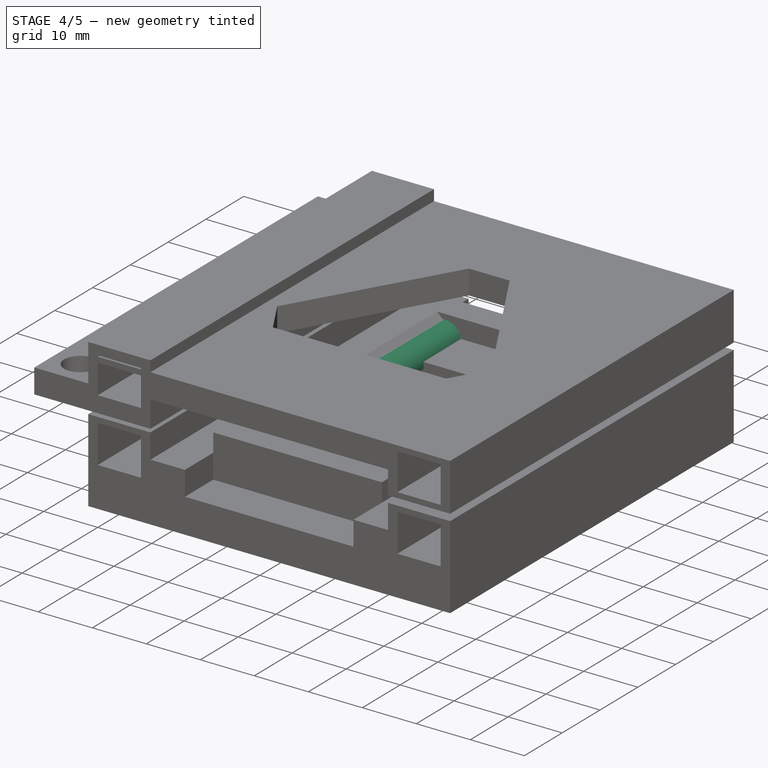
[diagram: stage 4 of 5 — iso view after this stage's code; geometry added in this stage tinted green]
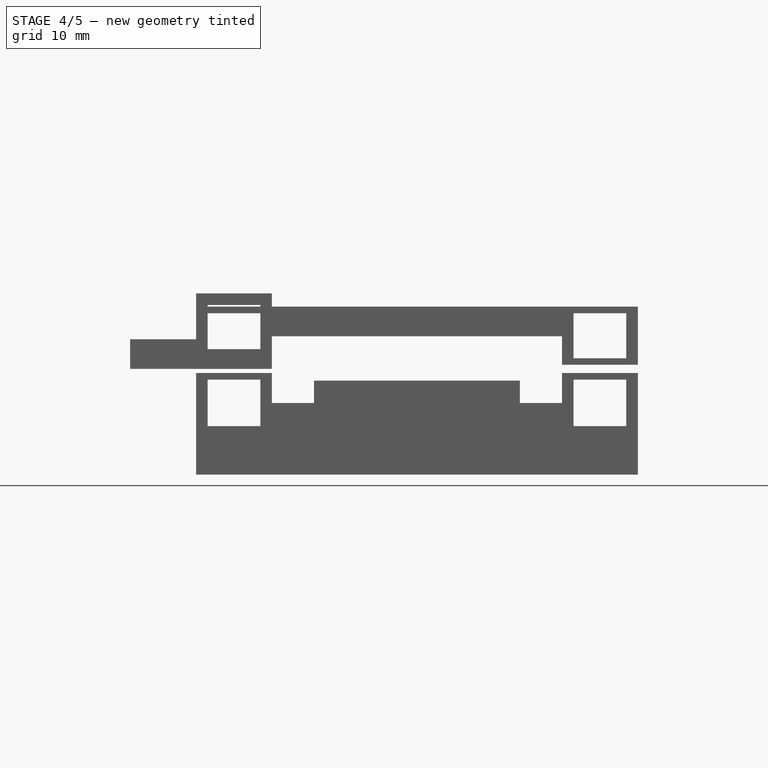
[diagram: stage 4 of 5 — front view after this stage's code; geometry added in this stage tinted green]
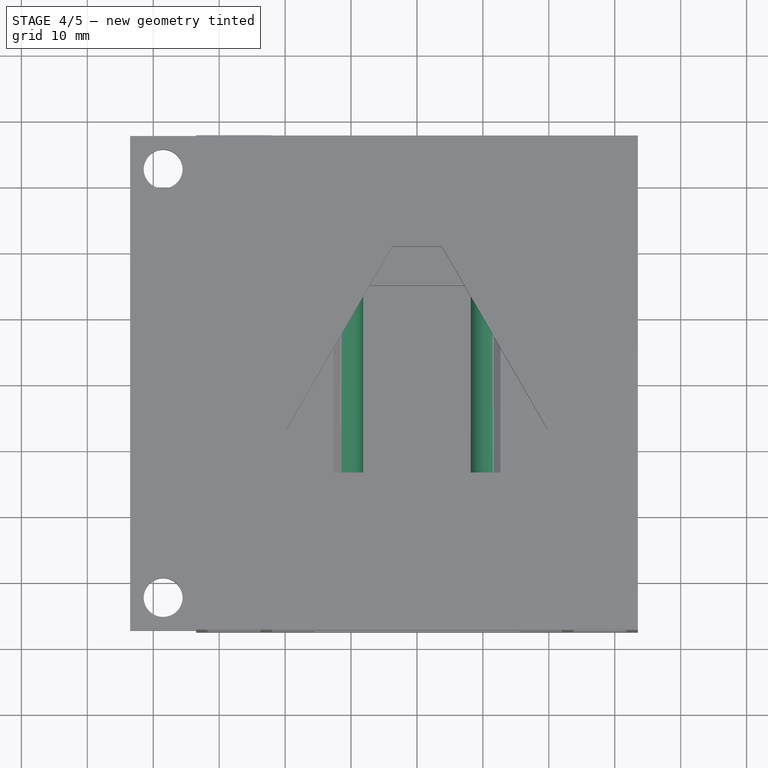
[diagram: stage 4 of 5 — top view after this stage's code; geometry added in this stage tinted green]
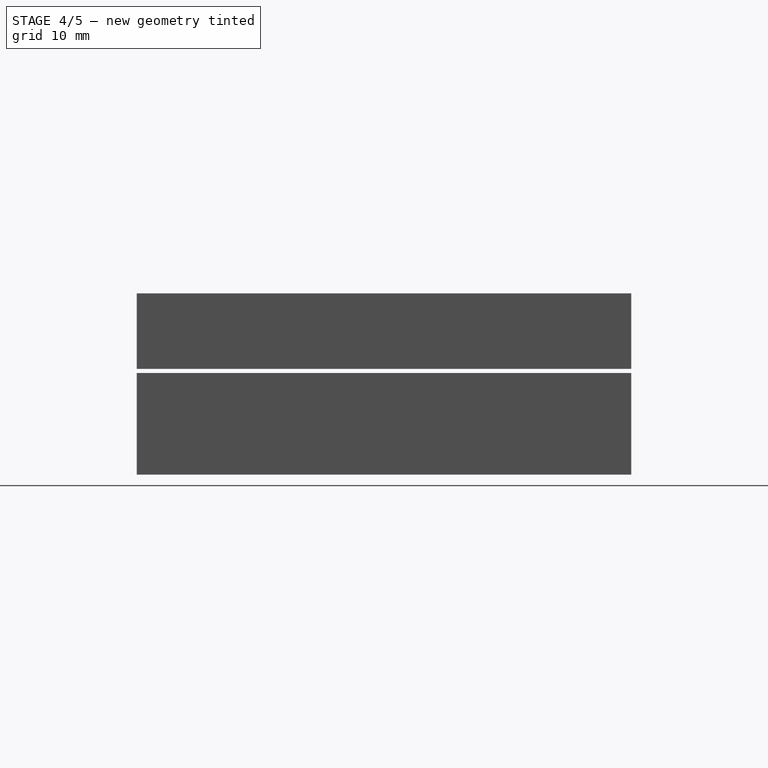
[diagram: stage 4 of 5 — right view after this stage's code; geometry added in this stage tinted green]
FEATURE [PartDesign::Body] Body  label="kinematicBase-large-top-retainer"
  AutoGroupSolids = false
  ClaimAllChildren = false
  ExportMode = 0
  Group = -> [Sketch,Revolution,Sketch001,Pad,Sketch006,Pad003]
  Origin = -> Origin
  Tip = -> Pad003
  TreeRank = 26
  _ExportChildren = -> [Revolution,Pad,Pad003]
  _GroupVersion = 1
FEATURE [PartDesign::Pad] Pad004
  AddSubType = 0
  AlongSketchNormal = false
  AutoTaperInnerAngle = true
  CheckUpToFaceLimits = true
  ClaimChildren = false
  Direction = (0,-1,-2e-16)
  Fit = 0
  FitJoin = 0
  InnerFit = 0
  InnerFitJoin = 0
  Length = 60
  Length2 = 100
  Linearize = true
  Midplane = true
  NewSolid = false
  Profile = -> Sketch005
  Refine = true
  Suppress = false
  TaperInnerAngle = 0
  TaperInnerAngleRev = 0
  TreeRank = 47
  Type = 0
  _ProfileBasedVersion = 1
  expr: Length = Spreadsheet.socketLength
FEATURE [Sketcher::SketchObject] Sketch007
  ArcFitTolerance = 1e-06
  AttachmentSupport = -> [Sketch005]
  ExternalBSplineMaxDegree = 5
  ExternalBSplineTolerance = 0.0001
  ExternalGeometry = -> [Sketch005]
  FullyConstrained = true
  InternalTolerance = 1e-06
  MakeInternals = false
  MapMode = 5
  Placement = pos=(0,0,0) rot=(-1,0,0;1.5708rad)
  Support = -> [Sketch005]
  TreeRank = 48
  sketch-geometry (2):
    g0: Circle CenterX=-11.136 CenterY=5.7 CenterZ=0 NormalX=0 NormalY=0 NormalZ=1 AngleXU=0 Radius=2.975
    g1: Circle CenterX=11.136 CenterY=5.7 CenterZ=0 NormalX=0 NormalY=0 NormalZ=1 AngleXU=0 Radius=2.975
  constraints (4):
    c: Coincident(g0,g-3)
    c: Coincident(g1,g-4)
    c: Equal(g1,g-4)
    c: Equal(g0,g-3)
FEATURE [Sketcher::SketchObject] Sketch008
  ArcFitTolerance = 1e-06
  AttachmentSupport = -> [Pad004]
  ExternalBSplineMaxDegree = 5
  ExternalBSplineTolerance = 0.0001
  ExternalGeometry = -> [Pad004]
  FullyConstrained = true
  InternalTolerance = 1e-06
  MakeInternals = false
  MapMode = 5
  Placement = pos=(0,30,6.7e-15) rot=(0,0.707107,0.707107;3.14159rad)
  Support = -> [Pad004]
  TreeRank = 49
  expr: Constraints[10] = Spreadsheet.socketFloor
  sketch-geometry (4):
    g0: LineSegment StartX=-15.611 StartY=-9.675 StartZ=0 EndX=15.611 EndY=-9.675 EndZ=0
    g1: LineSegment StartX=15.611 StartY=-9.675 StartZ=0 EndX=15.611 EndY=-5.175 EndZ=0
    g2: LineSegment StartX=15.611 StartY=-5.175 StartZ=0 EndX=-15.611 EndY=-5.175 EndZ=0
    g3: LineSegment StartX=-15.611 StartY=-5.175 StartZ=0 EndX=-15.611 EndY=-9.675 EndZ=0
  constraints (11):
    c: Coincident(g0,g1)
    c: Coincident(g1,g2)
    c: Coincident(g2,g3)
    c: Coincident(g3,g0)
    c: Horizontal(g0)
    c: Horizontal(g2)
    c: Vertical(g1)
    c: Vertical(g3)
    c: Coincident(g0,g-3)
    c: PointOnObject(g-4,g1)
    c: DistanceY(g1,g1) = 4.5
FEATURE [Sketcher::SketchObject] Sketch009
  ArcFitTolerance = 1e-06
  AttachmentSupport = -> [Pad004]
  ExternalBSplineMaxDegree = 5
  ExternalBSplineTolerance = 0.0001
  ExternalGeometry = -> [Pad004]
  FullyConstrained = true
  InternalTolerance = 1e-06
  MakeInternals = false
  MapMode = 5
  Placement = pos=(0,-30,-6.7e-15) rot=(1,0,0;1.5708rad)
  Support = -> [Pad004]
  TreeRank = 50
  expr: Constraints[10] = Spreadsheet.socketFloor
  sketch-geometry (4):
    g0: LineSegment StartX=-15.611 StartY=-9.675 StartZ=0 EndX=15.611 EndY=-9.675 EndZ=0
    g1: LineSegment StartX=15.611 StartY=-9.675 StartZ=0 EndX=15.611 EndY=-5.175 EndZ=0
    g2: LineSegment StartX=15.611 StartY=-5.175 StartZ=0 EndX=-15.611 EndY=-5.175 EndZ=0
    g3: LineSegment StartX=-15.611 StartY=-5.175 StartZ=0 EndX=-15.611 EndY=-9.675 EndZ=0
  constraints (12):
    c: Coincident(g0,g1)
    c: Coincident(g1,g2)
    c: Coincident(g2,g3)
    c: Coincident(g3,g0)
    c: Horizontal(g0)
    c: Horizontal(g2)
    c: Vertical(g1)
    c: Vertical(g3)
    c: PointOnObject(g-4,g1)
    c: PointOnObject(g-3,g3)
    c: DistanceY(g3,g3) = 4.5
    c: PointOnObject(g-3,g0)
FEATURE [PartDesign::Pad] Pad005
  AddSubType = 0
  AlongSketchNormal = false
  AutoTaperInnerAngle = true
  BaseFeature = -> Pad004
  CheckUpToFaceLimits = true
  ClaimChildren = false
  Direction = (0,1,2e-16)
  Fit = 0
  FitJoin = 0
  InnerFit = 0
  InnerFitJoin = 0
  Length = 15
  Length2 = 100
  Linearize = true
  NewSolid = false
  Profile = -> Sketch008
  Refine = true
  Reversed = true
  Suppress = false
  TaperInnerAngle = 0
  TaperInnerAngleRev = 0
  TreeRank = 51
  Type = 0
  _ProfileBasedVersion = 1
  expr: Length = Spreadsheet.socketBridge
FEATURE [Sketcher::SketchObject] Sketch010
  ArcFitTolerance = 1e-06
  AttachmentSupport = -> [XY_Plane002]
  ExternalBSplineMaxDegree = 5
  ExternalBSplineTolerance = 0.0001
  FullyConstrained = true
  InternalTolerance = 1e-06
  MakeInternals = false
  MapMode = 5
  Support = -> [XY_Plane002]
  TreeRank = 57
  expr: Constraints[0] = Spreadsheet.screwHole
  expr: Constraints[2] = Spreadsheet.screwHead
  expr: Constraints[6] = Spreadsheet.socketLength * 0.5 - Spreadsheet.socketCap
  sketch-geometry (6):
    g0: Circle CenterX=0 CenterY=20 CenterZ=0 NormalX=0 NormalY=0 NormalZ=1 AngleXU=0 Radius=2.95
    g1: Circle [constr] CenterX=0 CenterY=20 CenterZ=0 NormalX=0 NormalY=0 NormalZ=1 AngleXU=0 Radius=5
    g2: LineSegment [constr] StartX=0 StartY=20 StartZ=0 EndX=0 EndY=25 EndZ=0
    g3: Circle CenterX=0 CenterY=-20 CenterZ=0 NormalX=0 NormalY=0 NormalZ=1 AngleXU=0 Radius=2.95
    g4: Circle [constr] CenterX=0 CenterY=-20 CenterZ=0 NormalX=0 NormalY=0 NormalZ=1 AngleXU=0 Radius=5
    g5: LineSegment [constr] StartX=0 StartY=-20 StartZ=0 EndX=0 EndY=20 EndZ=0
  constraints (14):
    c: Diameter(g0) = 5.9
    c: Coincident(g1,g0)
    c: Diameter(g1) = 10
    c: Coincident(g2,g0)
    c: PointOnObject(g2,g1)
    c: Vertical(g2)
    c: DistanceY(g-1,g2) = 25
    c: PointOnObject(g0,g-2)
    c: Coincident(g4,g3)
    c: Coincident(g5,g3)
    c: Coincident(g5,g0)
    c: Symmetric(g5,g5,g-1)
    c: Equal(g3,g0)
    c: Equal(g4,g1)
FEATURE [Sketcher::SketchObject] Sketch012
  ArcFitTolerance = 1e-06
  AttachmentSupport = -> [Pad005]
  ExternalBSplineMaxDegree = 5
  ExternalBSplineTolerance = 0.0001
  ExternalGeometry = -> [Pad005]
  FullyConstrained = true
  InternalTolerance = 1e-06
  MakeInternals = false
  MapMode = 5
  Placement = pos=(0,30,1.69e-14) rot=(0,0.707107,0.707107;3.14159rad)
  Support = -> [Pad005]
  TreeRank = 59
  sketch-geometry (2):
    g0: LineSegment StartX=-15.611 StartY=-1.7702 StartZ=0 EndX=15.611 EndY=-1.7702 EndZ=0
    g1: LineSegment StartX=-15.611 StartY=-9.675 StartZ=0 EndX=15.611 EndY=-9.675 EndZ=0
  constraints (5):
    c: PointOnObject(g0,g-3)
    c: Coincident(g0,g-4)
    c: Horizontal(g0)
    c: Coincident(g1,g-3)
    c: Coincident(g1,g-4)
FEATURE [PartDesign::Pad] Pad008
  AddSubType = 0
  AlongSketchNormal = false
  AutoTaperInnerAngle = true
  BaseFeature = -> Pad005
  CheckUpToFaceLimits = true
  ClaimChildren = false
  Direction = (0,1,7e-16)
  Fit = 0
  FitJoin = 0
  InnerFit = 0
  InnerFitJoin = 0
  Length = 5
  Length2 = 100
  Linearize = true
  NewSolid = false
  Profile = -> Sketch012
  Refine = true
  Reversed = true
  Suppress = false
  TaperInnerAngle = 0
  TaperInnerAngleRev = 0
  TreeRank = 60
  Type = 0
  _ProfileBasedVersion = 1
  expr: Length = Spreadsheet.socketCap
FEATURE [PartDesign::Pad] Pad006
  AddSubType = 0
  AlongSketchNormal = false
  AutoTaperInnerAngle = true
  BaseFeature = -> Pad008
  CheckUpToFaceLimits = true
  ClaimChildren = false
  Direction = (0,-1,-2e-16)
  Fit = 0
  FitJoin = 0
  InnerFit = 0
  InnerFitJoin = 0
  Length = 15
  Length2 = 100
  Linearize = true
  NewSolid = false
  Profile = -> Sketch009
  Refine = true
  Reversed = true
  Suppress = false
  TaperInnerAngle = 0
  TaperInnerAngleRev = 0
  TreeRank = 52
  Type = 0
  _ProfileBasedVersion = 1
  expr: Length = Spreadsheet.socketBridge
FEATURE [PartDesign::Pad] Pad018
  AddSubType = 0
  AlongSketchNormal = false
  AutoTaperInnerAngle = true
  BaseFeature = -> Pad017
  CheckUpToFaceLimits = true
  ClaimChildren = false
  Direction = (0,1,2e-16)
  Fit = 0
  FitJoin = 0
  InnerFit = 0
  InnerFitJoin = 0
  Length = 30
  Length2 = 30
  Linearize = true
  NewSolid = false
  Profile = -> Sketch015
  Refine = true
  Suppress = false
  TaperInnerAngle = 0
  TaperInnerAngleRev = 0
  TreeRank = 65
  Type = 4
  _ProfileBasedVersion = 1
  expr: Length = Spreadsheet.socketLength * 0.5
  expr: Length2 = Spreadsheet.socketLength * 0.5
FEATURE [PartDesign::Body] Body004  label="kinematicBase-large-bottom-plate"
  AutoGroupSolids = false
  ClaimAllChildren = false
  ExportMode = 0
  Group = -> [Sketch021,Pad019,Sketch022,Pad020]
  Origin = -> Origin004
  Tip = -> Pad020
  TreeRank = 79
  _ExportChildren = -> [Pad019,Pad020]
  _GroupVersion = 1
FEATURE [Sketcher::SketchObject] Sketch023
  ArcFitTolerance = 1e-06
  AttachmentSupport = -> [Pad006]
  ExternalBSplineMaxDegree = 5
  ExternalBSplineTolerance = 0.0001
  ExternalGeometry = -> [Pad006]
  FullyConstrained = true
  InternalTolerance = 1e-06
  MakeInternals = false
  MapMode = 5
  Placement = pos=(0,-30,-1.69e-14) rot=(1,0,0;1.5708rad)
  Support = -> [Pad006]
  TreeRank = 84
  sketch-geometry (4):
    g0: LineSegment StartX=-15.611 StartY=-9.675 StartZ=0 EndX=15.611 EndY=-9.675 EndZ=0
    g1: LineSegment StartX=15.611 StartY=-9.675 StartZ=0 EndX=15.611 EndY=-1.7702 EndZ=0
    g2: LineSegment StartX=15.611 StartY=-1.7702 StartZ=0 EndX=-15.611 EndY=-1.7702 EndZ=0
    g3: LineSegment StartX=-15.611 StartY=-1.7702 StartZ=0 EndX=-15.611 EndY=-9.675 EndZ=0
  constraints (10):
    c: Coincident(g0,g1)
    c: Coincident(g1,g2)
    c: Coincident(g2,g3)
    c: Coincident(g3,g0)
    c: Horizontal(g0)
    c: Horizontal(g2)
    c: Vertical(g1)
    c: Vertical(g3)
    c: Coincident(g0,g-3)
    c: Coincident(g1,g-4)
FEATURE [PartDesign::Pad] Pad021
  AddSubType = 0
  AlongSketchNormal = false
  AutoTaperInnerAngle = true
  BaseFeature = -> Pad006
  CheckUpToFaceLimits = true
  ClaimChildren = false
  Direction = (0,-1,-4e-16)
  Fit = 0
  FitJoin = 0
  InnerFit = 0
  InnerFitJoin = 0
  Length = 5
  Length2 = 100
  Linearize = true
  NewSolid = false
  Profile = -> Sketch023
  Refine = true
  Reversed = true
  Suppress = false
  TaperInnerAngle = 0
  TaperInnerAngleRev = 0
  TreeRank = 85
  Type = 0
  _ProfileBasedVersion = 1
  expr: Length = Spreadsheet.socketCap
FEATURE [PartDesign::Pad] Pad009
  AddSubType = 0
  AlongSketchNormal = false
  AutoTaperInnerAngle = true
  BaseFeature = -> Pad021
  CheckUpToFaceLimits = true
  ClaimChildren = false
  Direction = (0,1,7e-16)
  Fit = 0
  FitJoin = 0
  InnerFit = 0
  InnerFitJoin = 0
  Length = 5
  Length2 = 100
  Linearize = true
  NewSolid = false
  Profile = -> Sketch013
  Refine = true
  Reversed = true
  Suppress = false
  TaperInnerAngle = 0
  TaperInnerAngleRev = 0
  TreeRank = 62
  Type = 0
  _ProfileBasedVersion = 1
  expr: Length = Spreadsheet.socketCap
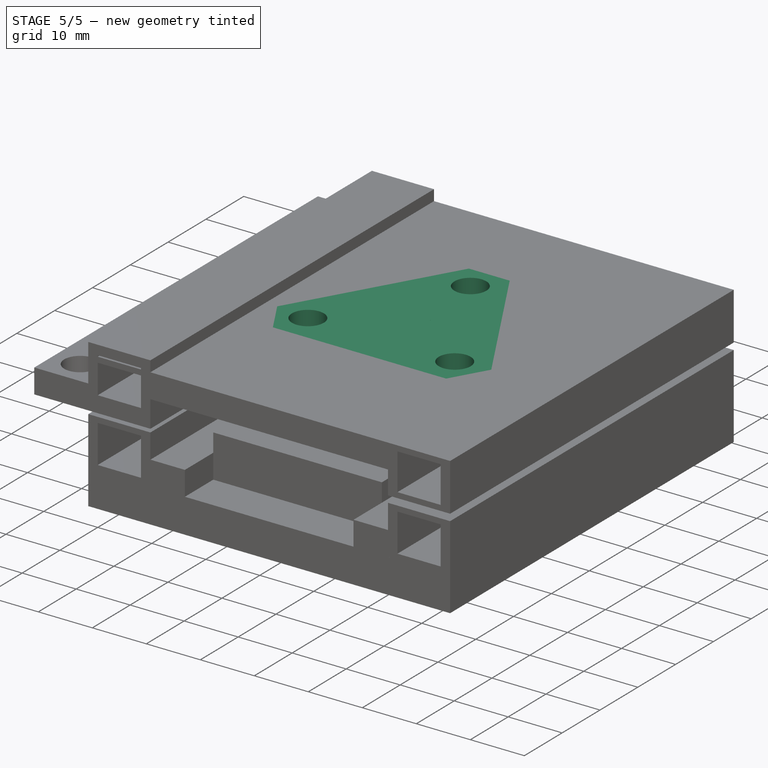
[diagram: stage 5 of 5 — iso view after this stage's code; geometry added in this stage tinted green]
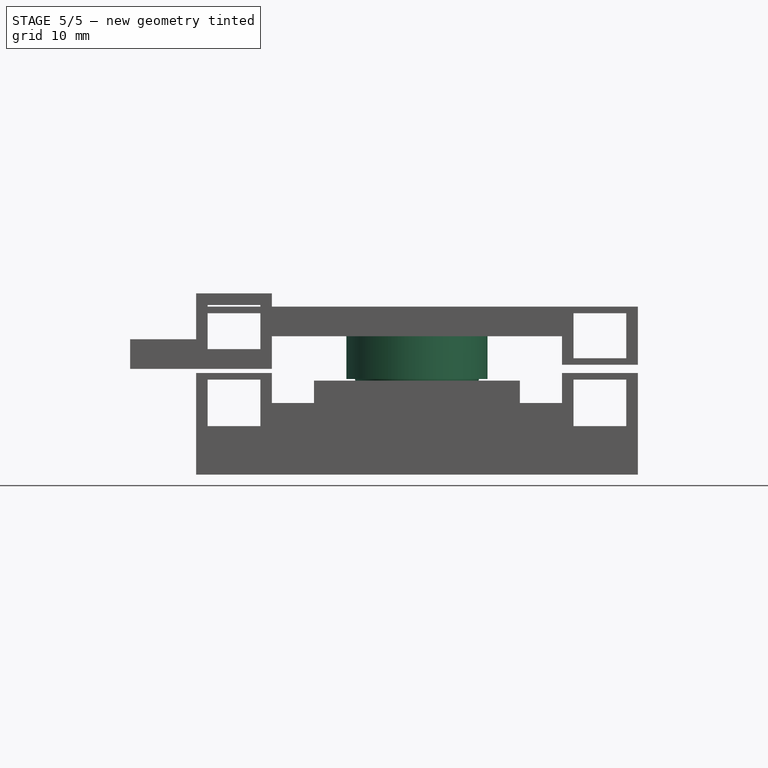
[diagram: stage 5 of 5 — front view after this stage's code; geometry added in this stage tinted green]
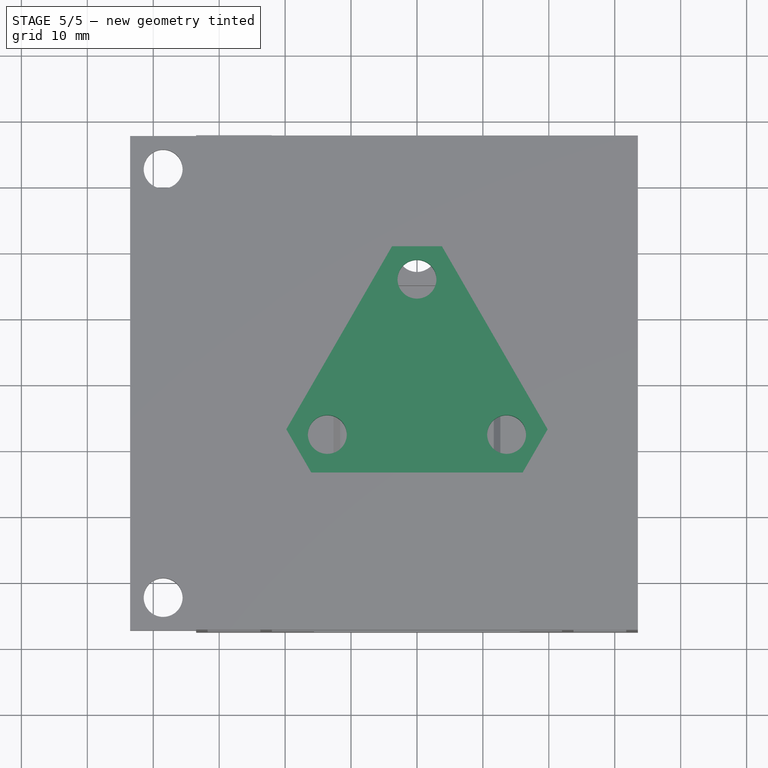
[diagram: stage 5 of 5 — top view after this stage's code; geometry added in this stage tinted green]
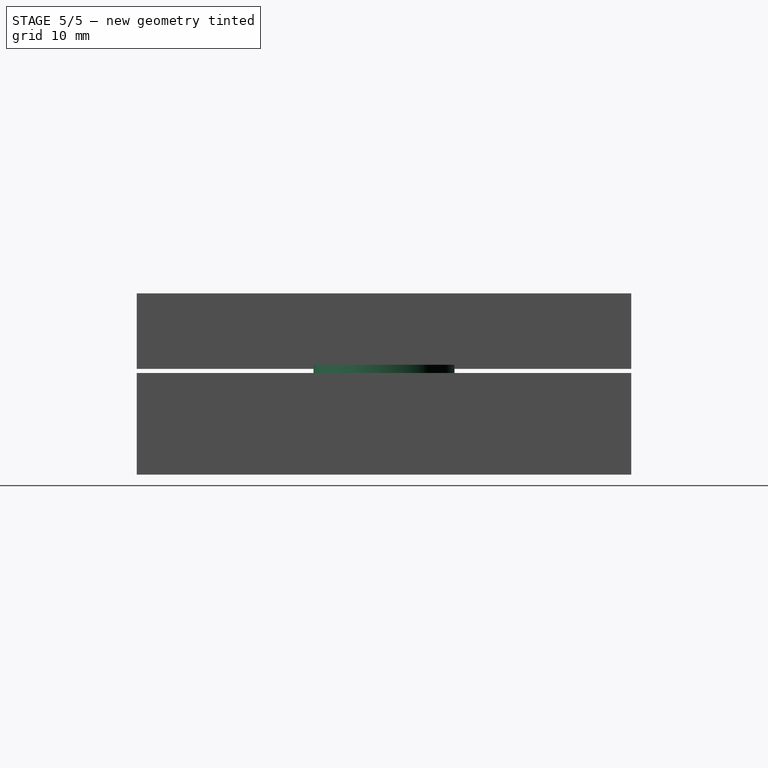
[diagram: stage 5 of 5 — right view after this stage's code; geometry added in this stage tinted green]
FEATURE [Part::Feature] Compound  label="0120-E0W"
  Placement = pos=(103,-1.22786e-05,0) rot=(0,0,1;3.14159rad)
  TreeRank = 1
  shape: bbox 76.2 x 76.2 x 25.42 mm, 1026 faces, 15 solids (baked)
FEATURE [Sketcher::SketchObject] Sketch
  ArcFitTolerance = 1e-06
  AttachmentSupport = -> [XZ_Plane]
  ExternalBSplineMaxDegree = 5
  ExternalBSplineTolerance = 0.0001
  FullyConstrained = true
  InternalTolerance = 1e-06
  MakeInternals = false
  MapMode = 5
  Placement = pos=(0,0,0) rot=(1,0,0;1.5708rad)
  Support = -> [XZ_Plane]
  TreeRank = 17
  expr: Constraints[10] = Spreadsheet.retainerRadius
  expr: Constraints[19] = Spreadsheet.retainerOverhang * 0.5
  expr: Constraints[8] = Spreadsheet.retainerFloorDistance
  expr: Constraints[9] = Spreadsheet.retainerWall
  sketch-geometry (7):
    g0: LineSegment StartX=10.7 StartY=9.45 StartZ=0 EndX=10.7 EndY=0 EndZ=0
    g1: LineSegment StartX=3.60118e-05 StartY=9.45 StartZ=0 EndX=10.7 EndY=9.45 EndZ=0
    g2: LineSegment [constr] StartX=10.7 StartY=0 StartZ=0 EndX=9.45 EndY=0 EndZ=0
    g3: ArcOfCircle CenterX=0 CenterY=0 CenterZ=0 NormalX=0 NormalY=0 NormalZ=1 AngleXU=0 Radius=9.45 StartAngle=0 EndAngle=1.57079
    g4: ArcOfCircle CenterX=0 CenterY=0 CenterZ=0 NormalX=0 NormalY=0 NormalZ=1 AngleXU=0 Radius=9.45 StartAngle=6.12036 EndAngle=6.28319
    g5: LineSegment StartX=10.7 StartY=0 StartZ=0 EndX=10.7 EndY=-1.53195 EndZ=0
    g6: LineSegment StartX=10.7 StartY=-1.53195 StartZ=0 EndX=9.325 EndY=-1.53195 EndZ=0
  constraints (20):
    c: Vertical(g0)
    c: Coincident(g1,g0)
    c: Horizontal(g1)
    c: Coincident(g2,g0)
    c: Horizontal(g2)
    c: Coincident(g3,g-1)
    c: Coincident(g3,g2)
    c: Coincident(g1,g3)
    c: DistanceY(g3,g1) = 9.45
    c: DistanceX(g2,g2) = 1.25
    c: DistanceX(g3,g2) = 9.45
    c: PointOnObject(g2,g-1)
    c: Coincident(g4,g3)
    c: Coincident(g4,g3)
    c: Coincident(g5,g0)
    c: Vertical(g5)
    c: Coincident(g6,g4)
    c: Coincident(g6,g5)
    c: Horizontal(g6)
    c: DistanceX(g4,g3) = 0.125
FEATURE [Spreadsheet::Sheet] Spreadsheet
  PythonMode = false
  ShowCells = 0
  TreeRank = 18
  cells = A1=thickness; B1(thickness)==ballDiameter + socketDiameter; A2=minimumWall; B2(minimumWall)=1; A4=screwHole; B4(screwHole)=5.9; A5=screwHead; B5(screwHead)=10; A7=ballDiameter; B7(ballDiameter)=19.05; A8=socketDiameter; B8(socketDiameter)=6.35; A9=plateWidth; B9(plateWidth)=31.75; A10=augmentationGap; B10(augmentationGap)=1.25; A12=retainerAperture; B12(retainerAperture)=6; C12=Openling for ball to directly contact surface behind retainer.; A13=retainerClerance; B13(retainerClearance)=0.15; C13=COMPLEX; A14=retainerRadius; B14(retainerRadius)==(.ballDiameter - retainerClearance) * 0.5; A15=retainerWall; B15(retainerWall)=1.25; A16=retainerFloorClearance; B16(retainerFloorClearance)=0.075; C16=COMPLEX; A17=retainerFloorDistance; B17(retainerFloorDistance)==.ballDiameter * 0.5 - retainerFloorClearance; A18=retainerOverhang; B18(retainerOverhang)=0.25; A19=retainerFloor; B19(retainerFloor)=4.5; A22=socketFloorClearance; B22(socketFloorClearance)=0.15; A23=socketRodClearance; B23(socketRodClearance)=0.01; A24=socketRodFit; B24(socketRodFit)==6 - 0.05; C24=Expect 0.15mm interference after any slicing and 3d printing inaccuracy as desirable for 3d printed plastic. Adjust accordingly.; A25=socketWall; B25(socketWall)=1.5; A26=socketLength; B26(socketLength)=60; A27=socketBridge; B27(socketBridge)=15; A28=socketCap; B28(socketCap)=5; A29=socketOverhangAngle; B29(socketOverhangAngle)==90 - 5; A30=socketBallClearance; B30(socketBallClearance)=1; A31=socketFloor; B31(socketFloor)=4.5; A33=augmentationWall; B33(augmentationWall)=1.75; A34=augmentationWidth; B34(augmentationWidth)=8; A35=augmentationLength; B35(augmentationLength)=75; A36=augmentationHeight; B36(augmentationHeight)==12.7 - .augmentationWall - .augmentationGap; A37=augmentationOffset; B37(augmentationOffset)=22; A38=augmentationFill; B38(augmentationFill)=3; A39=augmentationFloor; B39(augmentationFloor)=4.5; A41=retainerAugmentationBarrier; B41(retainerAugmentationBarrier)==.minimumWall; A42=retainerAugmentationHeight; B42(retainerAugmentationHeight)==.ballDiameter * 0.5 - .retainerFloorClearance - .retainerAugmentationBarrier - .augmentationGap * 0.5; A43=retainerAugmentationFill; B43(retainerAugmentationFill)==.minimumWall; A44=retainerAugmentationFloor; B44(retainerAugmentationFloor)=4.5; A46=socketAugmentationBarrier; B46(socketAugmentationBarrier)==.minimumWall; A47=socketAugmentationHeight; B47(socketAugmentationHeight)==.ballDiameter * 0.5 + .socketFloorClearance - .socketAugmentationBarrier - .augmentationGap * 0.5; A48=socketAugmentationFill; B48(socketAugmentationFill)==.minimumWall; A49=socketAugmentationFloor; B49(socketAugmentationFloor)==.augmentationFloor
FEATURE [PartDesign::Revolution] Revolution
  AddSubType = 0
  Angle = 360
  Axis = (0,-2e-16,1)
  Base = (0,0,0)
  ClaimChildren = false
  Fit = 0
  FitJoin = 0
  InnerFit = 0
  InnerFitJoin = 0
  Linearize = true
  NewSolid = false
  Profile = -> Sketch
  ReferenceAxis = -> Sketch [V_Axis]
  Refine = true
  Reversed = true
  Suppress = false
  TreeRank = 19
  _ProfileBasedVersion = 1
FEATURE [Sketcher::SketchObject] Sketch001
  ArcFitTolerance = 1e-06
  AttachmentOffset = pos=(0,0,9.45) rot=(0,0,1;0rad)
  AttachmentSupport = -> [XY_Plane]
  ExternalBSplineMaxDegree = 5
  ExternalBSplineTolerance = 0.0001
  FullyConstrained = true
  InternalTolerance = 1e-06
  MakeInternals = false
  MapMode = 5
  Placement = pos=(0,0,9.45) rot=(0,0,1;0rad)
  Support = -> [XY_Plane]
  TreeRank = 20
  expr: AttachmentOffset.Base.z = Spreadsheet.retainerFloorDistance
  expr: Constraints[32] = (Spreadsheet.retainerRadius + Spreadsheet.retainerWall) * 2
  expr: Constraints[43] = Spreadsheet.screwHead
  expr: Constraints[44] = Spreadsheet.screwHole
  sketch-geometry (20):
    g0: LineSegment StartX=-3.77992 StartY=20.7 StartZ=0 EndX=3.77992 EndY=20.7 EndZ=0
    g1: LineSegment StartX=19.8167 StartY=-7.0765 StartZ=0 EndX=16.0368 EndY=-13.6235 EndZ=0
    g2: LineSegment StartX=-16.0368 StartY=-13.6235 StartZ=0 EndX=-19.8167 EndY=-7.0765 EndZ=0
    g3: LineSegment StartX=-3.77992 StartY=20.7 StartZ=0 EndX=-19.8167 EndY=-7.0765 EndZ=0
    g4: LineSegment StartX=3.77992 StartY=20.7 StartZ=0 EndX=19.8167 EndY=-7.0765 EndZ=0
    g5: LineSegment StartX=16.0368 StartY=-13.6235 StartZ=0 EndX=-16.0368 EndY=-13.6235 EndZ=0
    g6: Circle [constr] CenterX=0 CenterY=0 CenterZ=0 NormalX=0 NormalY=0 NormalZ=1 AngleXU=0 Radius=21.0423
    g7: Circle CenterX=-5.4e-15 CenterY=15.7 CenterZ=0 NormalX=0 NormalY=0 NormalZ=1 AngleXU=0 Radius=2.95
    g8: Circle CenterX=13.5966 CenterY=-7.85 CenterZ=0 NormalX=0 NormalY=0 NormalZ=1 AngleXU=0 Radius=2.95
    g9: Circle CenterX=-13.5966 CenterY=-7.85 CenterZ=0 NormalX=0 NormalY=0 NormalZ=1 AngleXU=0 Radius=2.95
    g10: LineSegment [constr] StartX=-5.4e-15 StartY=15.7 StartZ=0 EndX=-5.4e-15 EndY=20.7 EndZ=0
    g11: LineSegment [constr] StartX=-17.9267 StartY=-10.35 StartZ=0 EndX=-13.5966 EndY=-7.85 EndZ=0
    g12: LineSegment [constr] StartX=13.5966 StartY=-7.85 StartZ=0 EndX=17.9267 EndY=-10.35 EndZ=0
    g13: Circle CenterX=0 CenterY=0 CenterZ=0 NormalX=0 NormalY=0 NormalZ=1 AngleXU=0 Radius=10.7
    g14: LineSegment [constr] StartX=-5.4e-15 StartY=18.65 StartZ=0 EndX=-5.4e-15 EndY=20.7 EndZ=0
    g15: LineSegment [constr] StartX=-5.4e-15 StartY=12.75 StartZ=0 EndX=-5.4e-15 EndY=10.7 EndZ=0
    g16: LineSegment [constr] StartX=-5.4e-15 StartY=18.65 StartZ=0 EndX=-5.4e-15 EndY=12.75 EndZ=0
    g17: LineSegment [constr] StartX=-5.4e-15 StartY=15.7 StartZ=0 EndX=2.55477 EndY=17.175 EndZ=0
    g18: LineSegment [constr] StartX=2.55477 StartY=17.175 StartZ=0 EndX=5 EndY=18.5868 EndZ=0
    g19: LineSegment [constr] StartX=5 StartY=18.5868 StartZ=0 EndX=-5 EndY=18.5868 EndZ=0
  constraints (55):
    c: Horizontal(g0)
    c: Coincident(g3,g0)
    c: Coincident(g3,g2)
    c: Coincident(g4,g0)
    c: Coincident(g4,g1)
    c: Coincident(g5,g1)
    c: Coincident(g5,g2)
    c: Equal(g4,g5)
    c: Equal(g5,g3)
    c: Equal(g2,g1)
    c: Equal(g1,g0)
    c: Coincident(g6,g-1)
    c: PointOnObject(g1,g6)
    c: PointOnObject(g1,g6)
    c: PointOnObject(g2,g6)
    c: PointOnObject(g0,g6)
    c: PointOnObject(g2,g6)
    c: PointOnObject(g0,g6)
    c: Coincident(g10,g7)
    c: Perpendicular(g0,g10)
    c: Coincident(g11,g9)
    c: Coincident(g12,g8)
    c: Perpendicular(g1,g12)
    c: Perpendicular(g2,g11)
    c: Equal(g10,g12)
    c: Equal(g12,g11)
    c: Symmetric(g0,g0,g10)
    c: Symmetric(g2,g2,g11)
    c: Symmetric(g1,g1,g12)
    c: Equal(g8,g7)
    c: Equal(g8,g9)
    c: Coincident(g13,g6)
    c: Diameter(g13) = 21.4
    c: PointOnObject(g14,g7)
    c: Coincident(g14,g10)
    c: PointOnObject(g15,g7)
    c: PointOnObject(g15,g13)
    c: Coincident(g16,g14)
    c: Coincident(g16,g15)
    c: Equal(g14,g15)
    c: Vertical(g14)
    c: Vertical(g16)
    c: Vertical(g15)
    c: DistanceY(g15,g10) = 10
    c: DistanceY(g15,g14) = 5.9
    c: PointOnObject(g17,g7)
    c: Coincident(g18,g17)
    c: PointOnObject(g18,g4)
    c: Perpendicular(g4,g18)
    c: Parallel(g17,g18)
    c: Coincident(g17,g7)
    c: Coincident(g19,g18)
    c: PointOnObject(g19,g3)
    c: Horizontal(g19)
    c: DistanceX(g19,g19) = 10
FEATURE [PartDesign::Pad] Pad
  AddSubType = 0
  AlongSketchNormal = false
  AutoTaperInnerAngle = true
  BaseFeature = -> Revolution
  CheckUpToFaceLimits = true
  ClaimChildren = false
  Direction = (0,0,1)
  Fit = 0
  FitJoin = 0
  InnerFit = 0
  InnerFitJoin = 0
  Length = 4.5
  Length2 = 100
  Linearize = true
  NewSolid = false
  Profile = -> Sketch001
  Refine = true
  Reversed = true
  Suppress = false
  TaperInnerAngle = 0
  TaperInnerAngleRev = 0
  TreeRank = 21
  Type = 0
  _ProfileBasedVersion = 1
  expr: Length = Spreadsheet.retainerFloor
FEATURE [Sketcher::SketchObject] Sketch002
  ArcFitTolerance = 1e-06
  AttachmentSupport = -> [XZ_Plane001]
  ExternalBSplineMaxDegree = 5
  ExternalBSplineTolerance = 0.0001
  FullyConstrained = true
  InternalTolerance = 1e-06
  MakeInternals = false
  MapMode = 5
  Placement = pos=(0,0,0) rot=(1,0,0;1.5708rad)
  Support = -> [XZ_Plane001]
  TreeRank = 17
  expr: Constraints[10] = Spreadsheet.retainerRadius
  expr: Constraints[19] = Spreadsheet.retainerOverhang * 0.5
  expr: Constraints[8] = Spreadsheet.retainerFloorDistance
  expr: Constraints[9] = Spreadsheet.retainerWall
  sketch-geometry (7):
    g0: LineSegment StartX=10.7 StartY=9.45 StartZ=0 EndX=10.7 EndY=0 EndZ=0
    g1: LineSegment StartX=3.6012e-05 StartY=9.45 StartZ=0 EndX=10.7 EndY=9.45 EndZ=0
    g2: LineSegment [constr] StartX=10.7 StartY=0 StartZ=0 EndX=9.45 EndY=0 EndZ=0
    g3: ArcOfCircle CenterX=0 CenterY=0 CenterZ=0 NormalX=0 NormalY=0 NormalZ=1 AngleXU=0 Radius=9.45 StartAngle=0 EndAngle=1.57079
    g4: ArcOfCircle CenterX=0 CenterY=0 CenterZ=0 NormalX=0 NormalY=0 NormalZ=1 AngleXU=0 Radius=9.45 StartAngle=6.12036 EndAngle=6.28319
    g5: LineSegment StartX=10.7 StartY=0 StartZ=0 EndX=10.7 EndY=-1.53195 EndZ=0
    g6: LineSegment StartX=10.7 StartY=-1.53195 StartZ=0 EndX=9.325 EndY=-1.53195 EndZ=0
  constraints (20):
    c: Vertical(g0)
    c: Coincident(g1,g0)
    c: Horizontal(g1)
    c: Coincident(g2,g0)
    c: Horizontal(g2)
    c: Coincident(g3,g-1)
    c: Coincident(g3,g2)
    c: Coincident(g1,g3)
    c: DistanceY(g3,g1) = 9.45
    c: DistanceX(g2,g2) = 1.25
    c: DistanceX(g3,g2) = 9.45
    c: PointOnObject(g2,g-1)
    c: Coincident(g4,g3)
    c: Coincident(g4,g3)
    c: Coincident(g5,g0)
    c: Vertical(g5)
    c: Coincident(g6,g4)
    c: Coincident(g6,g5)
    c: Horizontal(g6)
    c: DistanceX(g4,g3) = 0.125
FEATURE [PartDesign::Revolution] Revolution001
  AddSubType = 0
  Angle = 360
  Axis = (0,-2e-16,1)
  Base = (0,0,0)
  ClaimChildren = false
  Fit = 0
  FitJoin = 0
  InnerFit = 0
  InnerFitJoin = 0
  Linearize = true
  NewSolid = false
  Profile = -> Sketch002
  ReferenceAxis = -> Sketch002 [V_Axis]
  Refine = true
  Reversed = true
  Suppress = false
  TreeRank = 19
  _ProfileBasedVersion = 1
FEATURE [Sketcher::SketchObject] Sketch003
  ArcFitTolerance = 1e-06
  AttachmentOffset = pos=(0,0,9.45) rot=(0,0,1;0rad)
  AttachmentSupport = -> [XY_Plane001]
  ExternalBSplineMaxDegree = 5
  ExternalBSplineTolerance = 0.0001
  FullyConstrained = true
  InternalTolerance = 1e-06
  MakeInternals = false
  MapMode = 5
  Placement = pos=(0,0,9.45) rot=(0,0,1;0rad)
  Support = -> [XY_Plane001]
  TreeRank = 20
  expr: AttachmentOffset.Base.z = Spreadsheet.retainerFloorDistance
  expr: Constraints[32] = (Spreadsheet.retainerRadius + Spreadsheet.retainerWall) * 2
  expr: Constraints[43] = Spreadsheet.screwHead
  expr: Constraints[44] = Spreadsheet.screwHole
  sketch-geometry (20):
    g0: LineSegment StartX=-3.77992 StartY=20.7 StartZ=0 EndX=3.77992 EndY=20.7 EndZ=0
    g1: LineSegment StartX=19.8167 StartY=-7.0765 StartZ=0 EndX=16.0368 EndY=-13.6235 EndZ=0
    g2: LineSegment StartX=-16.0368 StartY=-13.6235 StartZ=0 EndX=-19.8167 EndY=-7.0765 EndZ=0
    g3: LineSegment StartX=-3.77992 StartY=20.7 StartZ=0 EndX=-19.8167 EndY=-7.0765 EndZ=0
    g4: LineSegment StartX=3.77992 StartY=20.7 StartZ=0 EndX=19.8167 EndY=-7.0765 EndZ=0
    g5: LineSegment StartX=16.0368 StartY=-13.6235 StartZ=0 EndX=-16.0368 EndY=-13.6235 EndZ=0
    g6: Circle [constr] CenterX=0 CenterY=0 CenterZ=0 NormalX=0 NormalY=0 NormalZ=1 AngleXU=0 Radius=21.0423
    g7: Circle CenterX=4.4e-15 CenterY=15.7 CenterZ=0 NormalX=0 NormalY=0 NormalZ=1 AngleXU=0 Radius=2.95
    g8: Circle CenterX=13.5966 CenterY=-7.85 CenterZ=0 NormalX=0 NormalY=0 NormalZ=1 AngleXU=0 Radius=2.95
    g9: Circle CenterX=-13.5966 CenterY=-7.85 CenterZ=0 NormalX=0 NormalY=0 NormalZ=1 AngleXU=0 Radius=2.95
    g10: LineSegment [constr] StartX=4.4e-15 StartY=15.7 StartZ=0 EndX=4.4e-15 EndY=20.7 EndZ=0
    g11: LineSegment [constr] StartX=-17.9267 StartY=-10.35 StartZ=0 EndX=-13.5966 EndY=-7.85 EndZ=0
    g12: LineSegment [constr] StartX=13.5966 StartY=-7.85 StartZ=0 EndX=17.9267 EndY=-10.35 EndZ=0
    g13: Circle CenterX=0 CenterY=0 CenterZ=0 NormalX=0 NormalY=0 NormalZ=1 AngleXU=0 Radius=10.7
    g14: LineSegment [constr] StartX=4.4e-15 StartY=18.65 StartZ=0 EndX=4.4e-15 EndY=20.7 EndZ=0
    g15: LineSegment [constr] StartX=4.4e-15 StartY=12.75 StartZ=0 EndX=4.4e-15 EndY=10.7 EndZ=0
    g16: LineSegment [constr] StartX=4.4e-15 StartY=18.65 StartZ=0 EndX=4.4e-15 EndY=12.75 EndZ=0
    g17: LineSegment [constr] StartX=4.4e-15 StartY=15.7 StartZ=0 EndX=2.55477 EndY=17.175 EndZ=0
    g18: LineSegment [constr] StartX=2.55477 StartY=17.175 StartZ=0 EndX=5 EndY=18.5868 EndZ=0
    g19: LineSegment [constr] StartX=5 StartY=18.5868 StartZ=0 EndX=-5 EndY=18.5868 EndZ=0
  constraints (55):
    c: Horizontal(g0)
    c: Coincident(g3,g0)
    c: Coincident(g3,g2)
    c: Coincident(g4,g0)
    c: Coincident(g4,g1)
    c: Coincident(g5,g1)
    c: Coincident(g5,g2)
    c: Equal(g4,g5)
    c: Equal(g5,g3)
    c: Equal(g2,g1)
    c: Equal(g1,g0)
    c: Coincident(g6,g-1)
    c: PointOnObject(g1,g6)
    c: PointOnObject(g1,g6)
    c: PointOnObject(g2,g6)
    c: PointOnObject(g0,g6)
    c: PointOnObject(g2,g6)
    c: PointOnObject(g0,g6)
    c: Coincident(g10,g7)
    c: Perpendicular(g0,g10)
    c: Coincident(g11,g9)
    c: Coincident(g12,g8)
    c: Perpendicular(g1,g12)
    c: Perpendicular(g2,g11)
    c: Equal(g10,g12)
    c: Equal(g12,g11)
    c: Symmetric(g0,g0,g10)
    c: Symmetric(g2,g2,g11)
    c: Symmetric(g1,g1,g12)
    c: Equal(g8,g7)
    c: Equal(g8,g9)
    c: Coincident(g13,g6)
    c: Diameter(g13) = 21.4
    c: PointOnObject(g14,g7)
    c: Coincident(g14,g10)
    c: PointOnObject(g15,g7)
    c: PointOnObject(g15,g13)
    c: Coincident(g16,g14)
    c: Coincident(g16,g15)
    c: Equal(g14,g15)
    c: Vertical(g14)
    c: Vertical(g16)
    c: Vertical(g15)
    c: DistanceY(g15,g10) = 10
    c: DistanceY(g15,g14) = 5.9
    c: PointOnObject(g17,g7)
    c: Coincident(g18,g17)
    c: PointOnObject(g18,g4)
    c: Perpendicular(g4,g18)
    c: Parallel(g17,g18)
    c: Coincident(g17,g7)
    c: Coincident(g19,g18)
    c: PointOnObject(g19,g3)
    c: Horizontal(g19)
    c: DistanceX(g19,g19) = 10
FEATURE [PartDesign::Pad] Pad001
  AddSubType = 0
  AlongSketchNormal = false
  AutoTaperInnerAngle = true
  BaseFeature = -> Revolution001
  CheckUpToFaceLimits = true
  ClaimChildren = false
  Direction = (0,0,1)
  Fit = 0
  FitJoin = 0
  InnerFit = 0
  InnerFitJoin = 0
  Length = 4.5
  Length2 = 100
  Linearize = true
  NewSolid = false
  Profile = -> Sketch003
  Refine = true
  Reversed = true
  Suppress = false
  TaperInnerAngle = 0
  TaperInnerAngleRev = 0
  TreeRank = 21
  Type = 0
  _ProfileBasedVersion = 1
  expr: Length = Spreadsheet.retainerFloor
FEATURE [Sketcher::SketchObject] Sketch004
  ArcFitTolerance = 1e-06
  AttachmentSupport = -> [Sketch002]
  ExternalBSplineMaxDegree = 5
  ExternalBSplineTolerance = 0.0001
  ExternalGeometry = -> [Sketch002]
  FullyConstrained = true
  InternalTolerance = 1e-06
  MakeInternals = false
  MapMode = 5
  Placement = pos=(0,0,0) rot=(-1,0,0;1.5708rad)
  Support = -> [Sketch002]
  TreeRank = 24
  expr: Constraints[11] = Spreadsheet.retainerFloorDistance
  expr: Constraints[12] = Spreadsheet.ballDiameter * 0.5
  sketch-geometry (5):
    g0: LineSegment [constr] StartX=0 StartY=9.525 StartZ=0 EndX=0 EndY=-9.525 EndZ=0
    g1: ArcOfCircle CenterX=0 CenterY=0 CenterZ=0 NormalX=0 NormalY=0 NormalZ=1 AngleXU=0 Radius=9.525 StartAngle=4.83796 EndAngle=7.85398
    g2: LineSegment StartX=1.19295 StartY=-9.45 StartZ=0 EndX=0 EndY=-9.45 EndZ=0
    g3: LineSegment StartX=0 StartY=-9.45 StartZ=0 EndX=0 EndY=9.525 EndZ=0
    g4: ArcOfCircle [constr] CenterX=0 CenterY=0 CenterZ=0 NormalX=0 NormalY=0 NormalZ=1 AngleXU=0 Radius=9.525 StartAngle=4.71239 EndAngle=4.83796
  constraints (14):
    c: Vertical(g0)
    c: Coincident(g1,g0)
    c: Coincident(g2,g1)
    c: PointOnObject(g2,g0)
    c: Horizontal(g2)
    c: Coincident(g3,g2)
    c: Coincident(g3,g1)
    c: Coincident(g4,g1)
    c: Coincident(g4,g1)
    c: Coincident(g4,g0)
    c: PointOnObject(g1,g3)
    c: DistanceY(g2,g1) = 9.45
    c: Radius(g1) = 9.525
    c: Coincident(g1,g-3)
FEATURE [PartDesign::Revolution] Revolution002
  AddSubType = 0
  Angle = 360
  Axis = (0,2e-16,-1)
  Base = (0,0,0)
  BaseFeature = -> Pad001
  ClaimChildren = false
  Fit = 0
  FitJoin = 0
  InnerFit = 0
  InnerFitJoin = 0
  Linearize = true
  NewSolid = false
  Profile = -> Sketch004
  ReferenceAxis = -> Sketch004 [V_Axis]
  Refine = true
  Reversed = true
  Suppress = false
  TreeRank = 25
  _ProfileBasedVersion = 1
FEATURE [PartDesign::Body] Body001  label="kinematicBase-large-top-ball"
  AutoGroupSolids = false
  ClaimAllChildren = false
  ExportMode = 0
  Group = -> [Sketch002,Revolution001,Sketch003,Pad001,Sketch004,Revolution002]
  Origin = -> Origin001
  Tip = -> Revolution002
  TreeRank = 22
  _ExportChildren = -> [Revolution001,Pad001,Revolution002]
  _GroupVersion = 1
FEATURE [App::Link] Link  label="BYC33"
  AutoLinkLabel = false
  AutoPlacement = true
  LinkPlacement = pos=(-25,-35,4) rot=(0,0,1;1.5708rad)
  LinkedObject = -> <external _ref/K_J_Magnetics/BYC33.FCStd>#Body
  Placement = pos=(-25,-35,4) rot=(0,0,1;1.5708rad)
  SyncGroupVisibility = false
  TreeRank = 31
  _LinkVersion = 1
FEATURE [Sketcher::SketchObject] Sketch005
  ArcFitTolerance = 1e-06
  AttachmentSupport = -> [XZ_Plane002]
  ExternalBSplineMaxDegree = 5
  ExternalBSplineTolerance = 0.0001
  FullyConstrained = true
  InternalTolerance = 1e-06
  MakeInternals = false
  MapMode = 5
  Placement = pos=(0,0,0) rot=(1,0,0;1.5708rad)
  Support = -> [XZ_Plane002]
  TreeRank = 42
  expr: Constraints[18] = Spreadsheet.socketWall
  expr: Constraints[1] = Spreadsheet.ballDiameter
  expr: Constraints[23] = Spreadsheet.retainerOverhang
  expr: Constraints[30] = Spreadsheet.socketRodClearance
  expr: Constraints[39] = Spreadsheet.socketRodFit
  expr: Constraints[40] = Spreadsheet.minimumWall
  expr: Constraints[48] = Spreadsheet.socketOverhangAngle
  expr: Constraints[9] = Spreadsheet.socketFloorClearance
  sketch-geometry (35):
    g0: Circle [constr] CenterX=0 CenterY=0 CenterZ=0 NormalX=0 NormalY=0 NormalZ=1 AngleXU=0 Radius=9.525
    g1: LineSegment [constr] StartX=-8.47884 StartY=-4.33993 StartZ=0 EndX=0 EndY=0 EndZ=0
    g2: LineSegment [constr] StartX=0 StartY=-9.675 StartZ=0 EndX=0 EndY=-9.525 EndZ=0
    g3: LineSegment [constr] StartX=0 StartY=-9.525 StartZ=0 EndX=0 EndY=0 EndZ=0
    g4: ArcOfCircle CenterX=-11.136 CenterY=-5.7 CenterZ=0 NormalX=0 NormalY=0 NormalZ=1 AngleXU=0 Radius=2.975 StartAngle=1.74533 EndAngle=6.00849
    g5: LineSegment StartX=-15.611 StartY=-1.7702 StartZ=0 EndX=-15.611 EndY=-9.675 EndZ=0
    g6: LineSegment [constr] StartX=-11.136 StartY=-5.7 StartZ=0 EndX=-14.111 EndY=-5.7 EndZ=0
    g7: LineSegment [constr] StartX=-14.111 StartY=-5.7 StartZ=0 EndX=-15.611 EndY=-5.7 EndZ=0
    g8: LineSegment [constr] StartX=-11.136 StartY=-5.7 StartZ=0 EndX=-11.136 EndY=-8.675 EndZ=0
    g9: ArcOfCircle [constr] CenterX=0 CenterY=0 CenterZ=0 NormalX=0 NormalY=0 NormalZ=1 AngleXU=0 Radius=9.525 StartAngle=3.14159 EndAngle=3.37121
    g10: ArcOfCircle [constr] CenterX=-11.136 CenterY=-5.7 CenterZ=0 NormalX=0 NormalY=0 NormalZ=1 AngleXU=0 Radius=2.975 StartAngle=0 EndAngle=1.74533
    g11: LineSegment [constr] StartX=-8.47884 StartY=-4.33993 StartZ=0 EndX=-8.48774 EndY=-4.34448 EndZ=0
    g12: LineSegment [constr] StartX=-8.48774 StartY=-4.34448 StartZ=0 EndX=-11.136 EndY=-5.7 EndZ=0
    g13: LineSegment StartX=-11.6526 StartY=-2.7702 StartZ=0 EndX=-12.6526 EndY=-1.7702 EndZ=0
    g14: LineSegment StartX=-12.6526 StartY=-1.7702 StartZ=0 EndX=-15.611 EndY=-1.7702 EndZ=0
    g15: LineSegment [constr] StartX=-11.136 StartY=-5.7 StartZ=0 EndX=-8.16098 EndY=-5.7 EndZ=0
    g16: LineSegment [constr] StartX=-11.136 StartY=-5.7 StartZ=0 EndX=-11.136 EndY=-2.725 EndZ=0
    g17: LineSegment [constr] StartX=-11.136 StartY=-2.725 StartZ=0 EndX=-11.6526 EndY=-2.7702 EndZ=0
    g18: LineSegment [constr] StartX=0 StartY=0 StartZ=0 EndX=-7.48654 EndY=-5.88875 EndZ=0
    g19: LineSegment [constr] StartX=-7.48654 StartY=-5.88875 StartZ=0 EndX=-8.27252 EndY=-6.50699 EndZ=0
    g20: LineSegment [constr] StartX=-11.6526 StartY=-2.7702 StartZ=0 EndX=-8.27252 EndY=-6.50699 EndZ=0
    g21: LineSegment [constr] StartX=-13.1317 StartY=-3.49368 StartZ=0 EndX=-9.14029 EndY=-7.90632 EndZ=0
    g22: LineSegment [constr] StartX=-11.6526 StartY=-2.7702 StartZ=0 EndX=-12.826 EndY=-3.8316 EndZ=0
    g23: LineSegment [constr] StartX=0 StartY=-9.675 StartZ=0 EndX=-8.27252 EndY=-9.675 EndZ=0
    g24: LineSegment StartX=-8.27252 StartY=-9.675 StartZ=0 EndX=-8.27252 EndY=-6.50699 EndZ=0
    g25: LineSegment StartX=-8.27252 StartY=-9.675 StartZ=0 EndX=-15.611 EndY=-9.675 EndZ=0
    g26: LineSegment [constr] StartX=8.27252 StartY=-9.675 StartZ=0 EndX=0 EndY=-9.675 EndZ=0
    g27: LineSegment StartX=8.27252 StartY=-9.675 StartZ=0 EndX=8.27252 EndY=-6.50699 EndZ=0
    g28: LineSegment StartX=8.27252 StartY=-9.675 StartZ=0 EndX=15.611 EndY=-9.675 EndZ=0
    g29: LineSegment StartX=15.611 StartY=-9.675 StartZ=0 EndX=15.611 EndY=-1.7702 EndZ=0
    g30: LineSegment StartX=15.611 StartY=-1.7702 StartZ=0 EndX=12.6526 EndY=-1.7702 EndZ=0
    g31: LineSegment StartX=12.6526 StartY=-1.7702 StartZ=0 EndX=11.6526 EndY=-2.7702 EndZ=0
    g32: ArcOfCircle CenterX=11.136 CenterY=-5.7 CenterZ=0 NormalX=0 NormalY=0 NormalZ=1 AngleXU=0 Radius=2.975 StartAngle=3.41629 EndAngle=7.67945
    g33: LineSegment [constr] StartX=11.136 StartY=-5.7 StartZ=0 EndX=14.111 EndY=-5.7 EndZ=0
    g34: LineSegment [constr] StartX=14.111 StartY=-5.7 StartZ=0 EndX=15.611 EndY=-5.7 EndZ=0
  constraints (105):
    c: Coincident(g0,g-1)
    c: Diameter(g0) = 19.05
    c: PointOnObject(g1,g0)
    c: Coincident(g1,g0)
    c: PointOnObject(g2,g0)
    c: Vertical(g2)
    c: Coincident(g3,g2)
    c: Coincident(g3,g0)
    c: Vertical(g3)
    c: DistanceY(g2,g2) = 0.15
    c: Vertical(g5)
    c: PointOnObject(g8,g4)
    c: Coincident(g6,g4)
    c: PointOnObject(g6,g4)
    c: Horizontal(g6)
    c: Coincident(g7,g6)
    c: PointOnObject(g7,g5)
    c: Horizontal(g7)
    c: DistanceX(g7,g7) = 1.5
    c: Coincident(g8,g4)
    c: Vertical(g8)
    c: Coincident(g9,g0)
    c: PointOnObject(g9,g-1)
    c: DistanceX(g9,g9) = 0.25
    c: PointOnObject(g9,g0)
    c: Coincident(g10,g4)
    c: Coincident(g10,g4)
    c: Coincident(g11,g1)
    c: PointOnObject(g11,g10)
    c: Parallel(g11,g1)
    c: Distance(g11) = 0.01
    c: Coincident(g12,g11)
    c: Coincident(g12,g4)
    c: Parallel(g1,g12)
    c: Coincident(g13,g4)
    c: Coincident(g14,g5)
    c: Horizontal(g14)
    c: Coincident(g14,g13)
    c: Angle(g14,g13) = 2.35619
    c: Diameter(g4) = 5.95
    c: DistanceY(g4,g13) = 1
    c: Coincident(g15,g4)
    c: Horizontal(g15)
    c: PointOnObject(g10,g15)
    c: Coincident(g16,g4)
    c: PointOnObject(g16,g10)
    c: Vertical(g16)
    c: Coincident(g17,g16)
    c: Angle(g17,g16) = 1.48353
    c: PointOnObject(g4,g17)
    c: PointOnObject(g17,g10)
    c: PointOnObject(g15,g10)
    c: Coincident(g18,g0)
    c: PointOnObject(g18,g0)
    c: Coincident(g19,g18)
    c: Coincident(g19,g4)
    c: Parallel(g19,g18)
    c: Distance(g19) = 1
    c: Coincident(g20,g4)
    c: Coincident(g20,g4)
    c: PointOnObject(g21,g4)
    c: PointOnObject(g21,g4)
    c: PointOnObject(g4,g21)
    c: Parallel(g21,g20)
    c: Coincident(g22,g4)
    c: PointOnObject(g22,g21)
    c: Perpendicular(g20,g22)
    c: Distance(g22,g21) = 0.455652
    c: Coincident(g23,g2)
    c: Horizontal(g23)
    c: Coincident(g24,g4)
    c: Vertical(g24)
    c: Coincident(g23,g24)
    c: DistanceY(g23,g8) = 1
    c: Coincident(g25,g23)
    c: Coincident(g25,g5)
    c: Horizontal(g25)
    c: DistanceY(g24,g24) = 3.16801
    c: Coincident(g26,g2)
    c: Horizontal(g26)
    c: Coincident(g27,g26)
    c: Vertical(g27)
    c: Coincident(g28,g26)
    c: Horizontal(g28)
    c: Vertical(g29)
    c: Coincident(g30,g29)
    c: Horizontal(g30)
    c: Coincident(g31,g30)
    c: Coincident(g32,g31)
    c: Coincident(g32,g27)
    c: Equal(g4,g32)
    c: Equal(g27,g24)
    c: Equal(g29,g5)
    c: Equal(g30,g14)
    c: Equal(g13,g31)
    c: Angle(g31,g30) = 2.35619
    c: Coincident(g29,g28)
    c: Coincident(g33,g32)
    c: PointOnObject(g33,g32)
    c: Horizontal(g33)
    c: Coincident(g34,g33)
    c: PointOnObject(g34,g29)
    c: Horizontal(g34)
    c: Equal(g34,g7)
    c: Equal(g26,g23)
FEATURE [Sketcher::SketchObject] Sketch006
  ArcFitTolerance = 1e-06
  AttachmentSupport = -> [Sketch001]
  ExternalBSplineMaxDegree = 5
  ExternalBSplineTolerance = 0.0001
  FullyConstrained = true
  InternalTolerance = 1e-06
  MakeInternals = false
  MapMode = 5
  Placement = pos=(0,0,9.45) rot=(0,0,1;0rad)
  Support = -> [Sketch001]
  TreeRank = 44
  expr: Constraints[0] = Spreadsheet.retainerAperture
  sketch-geometry (1):
    g0: Circle CenterX=0 CenterY=0 CenterZ=0 NormalX=0 NormalY=0 NormalZ=1 AngleXU=0 Radius=3
  constraints (2):
    c: Diameter(g0) = 6
    c: Coincident(g0,g-1)
FEATURE [PartDesign::Pad] Pad003
  AddSubType = 1
  AlongSketchNormal = false
  AutoTaperInnerAngle = true
  BaseFeature = -> Pad
  CheckUpToFaceLimits = true
  ClaimChildren = false
  Direction = (0,0,1)
  Fit = 0
  FitJoin = 0
  InnerFit = 0
  InnerFitJoin = 0
  Length = 75
  Length2 = 100
  Linearize = true
  NewSolid = false
  Profile = -> Sketch006
  Refine = true
  Reversed = true
  Suppress = false
  TaperInnerAngle = 0
  TaperInnerAngleRev = 0
  TreeRank = 45
  Type = 0
  _ProfileBasedVersion = 1
FEATURE [PartDesign::Pad] Pad007
  AddSubType = 1
  AlongSketchNormal = false
  AutoTaperInnerAngle = true
  BaseFeature = -> Pad009
  CheckUpToFaceLimits = true
  ClaimChildren = false
  Direction = (0,1,2e-16)
  Fit = 0
  FitJoin = 0
  InnerFit = 0
  InnerFitJoin = 0
  Length = 80
  Length2 = 100
  Linearize = true
  Midplane = true
  NewSolid = false
  Profile = -> Sketch007
  Refine = true
  Suppress = false
  TaperInnerAngle = 0
  TaperInnerAngleRev = 0
  TreeRank = 56
  Type = 0
  _ProfileBasedVersion = 1
FEATURE [PartDesign::Pad] Pad010
  AddSubType = 1
  AlongSketchNormal = false
  AutoTaperInnerAngle = true
  BaseFeature = -> Pad007
  CheckUpToFaceLimits = true
  ClaimChildren = false
  Direction = (0,0,1)
  Fit = 0
  FitJoin = 0
  InnerFit = 0
  InnerFitJoin = 0
  Length = 70
  Length2 = 100
  Linearize = true
  NewSolid = false
  Profile = -> Sketch010
  Refine = true
  Reversed = true
  Suppress = false
  TaperInnerAngle = 0
  TaperInnerAngleRev = 0
  TreeRank = 63
  Type = 0
  _ProfileBasedVersion = 1
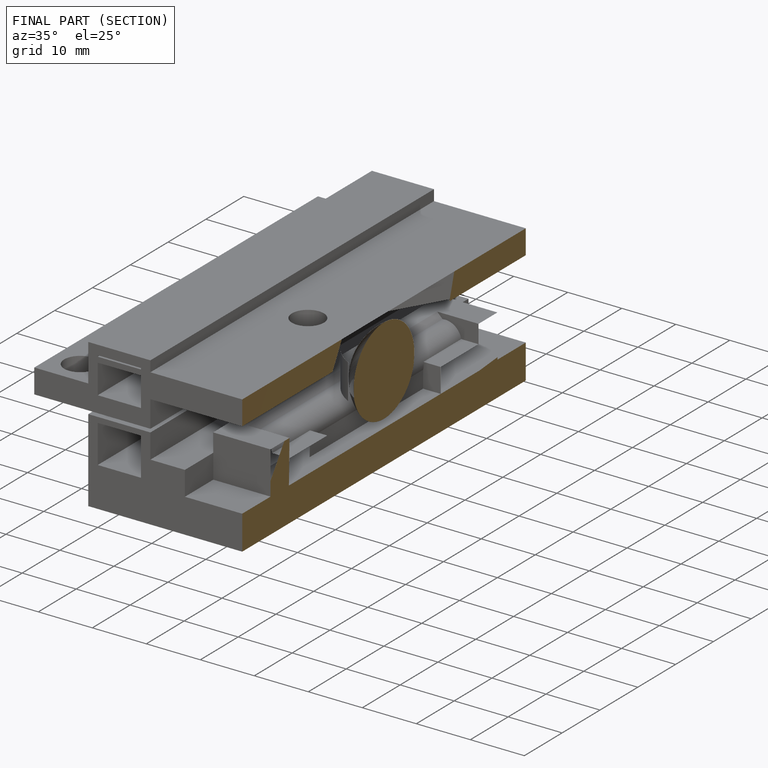
[diagram: finished part — half-section view (interior)]
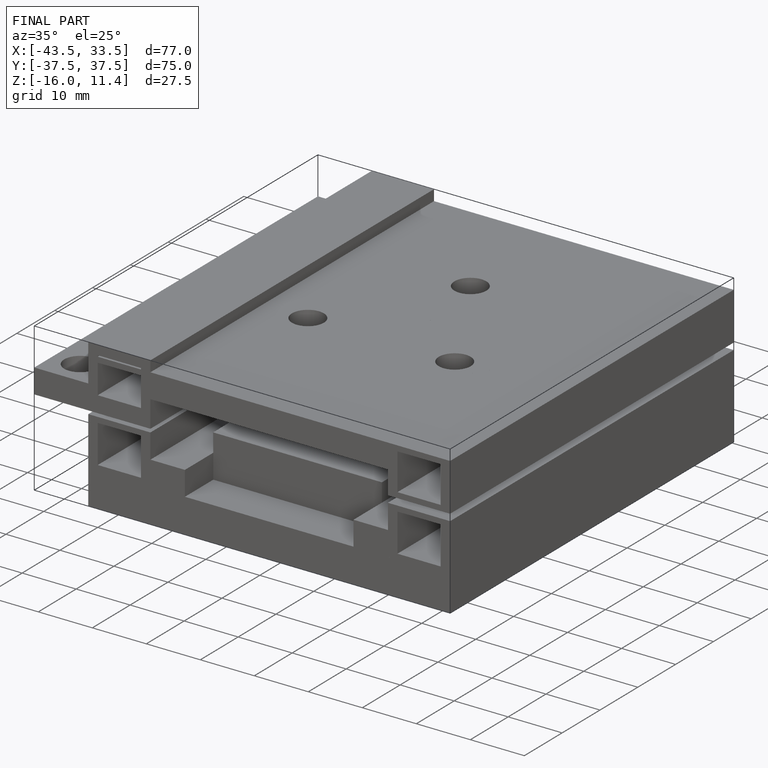
[diagram: finished part — iso view with bounding-box wireframe]
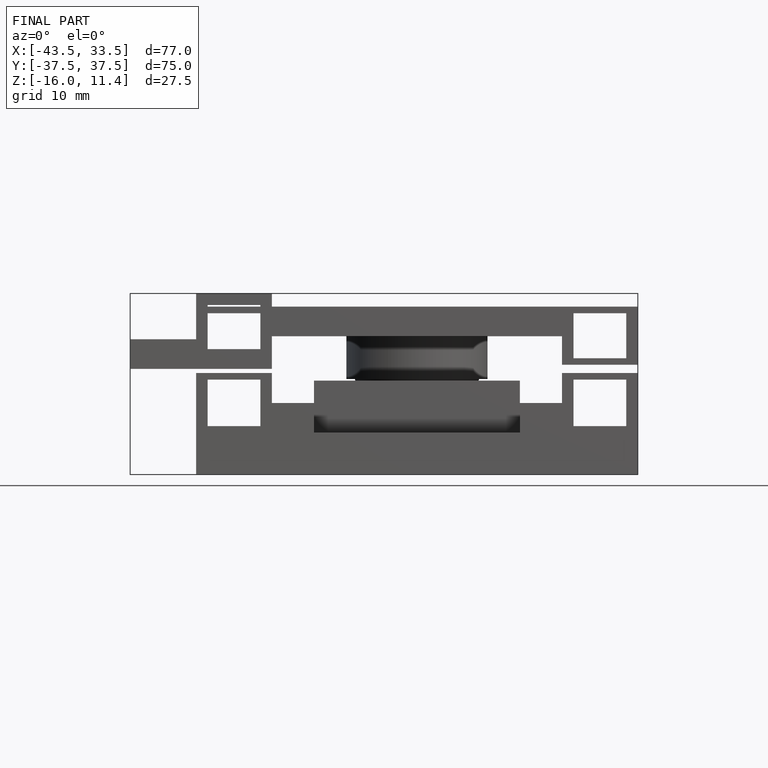
[diagram: finished part — front view with bounding-box wireframe]
